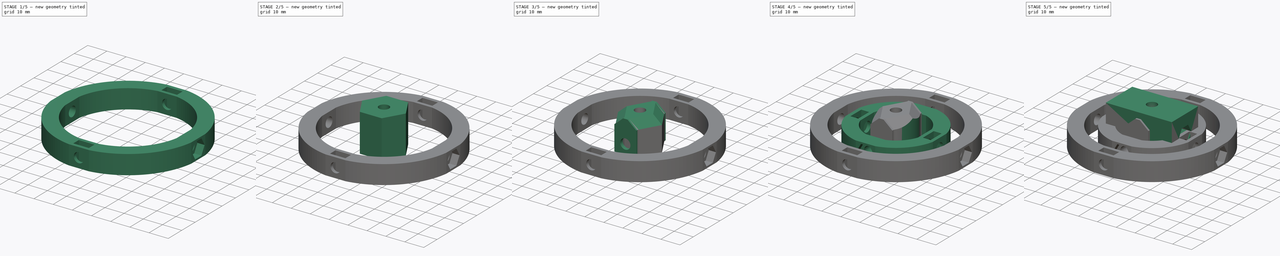
[diagram: build sequence overview — one tinted view per stage of 5, left to right]
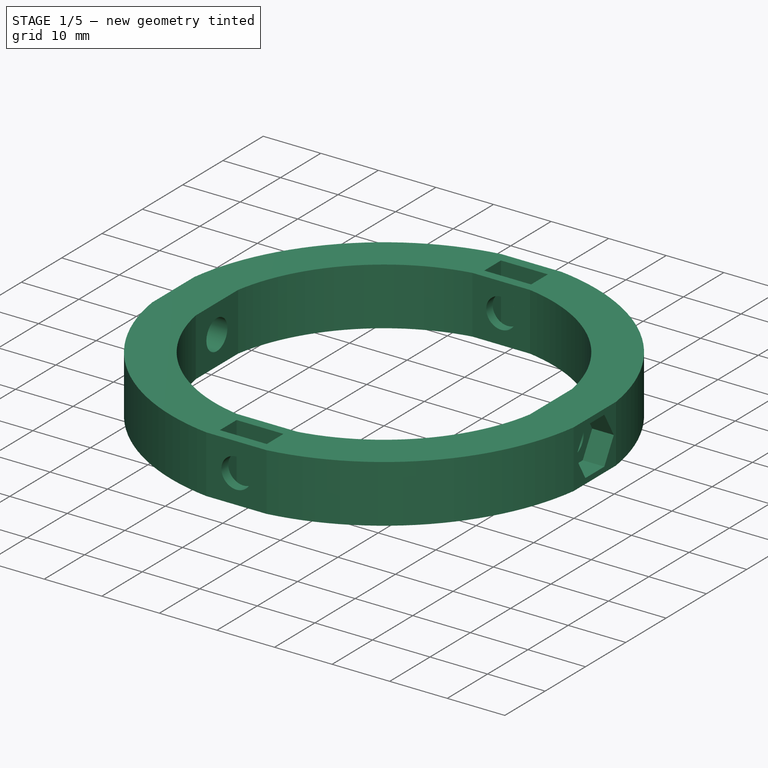
[diagram: stage 1 of 5 — iso view after this stage's code; geometry added in this stage tinted green]
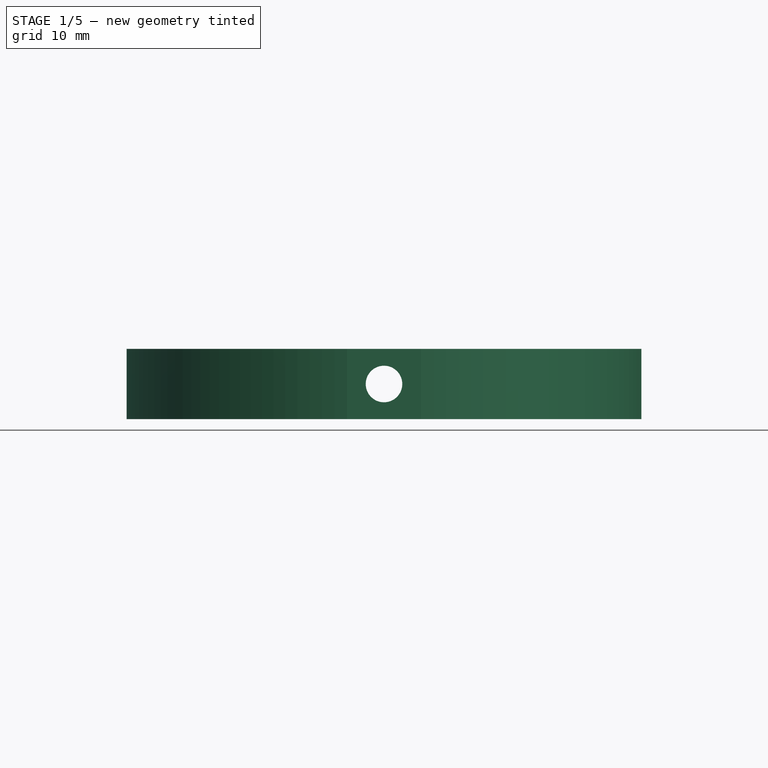
[diagram: stage 1 of 5 — front view after this stage's code; geometry added in this stage tinted green]
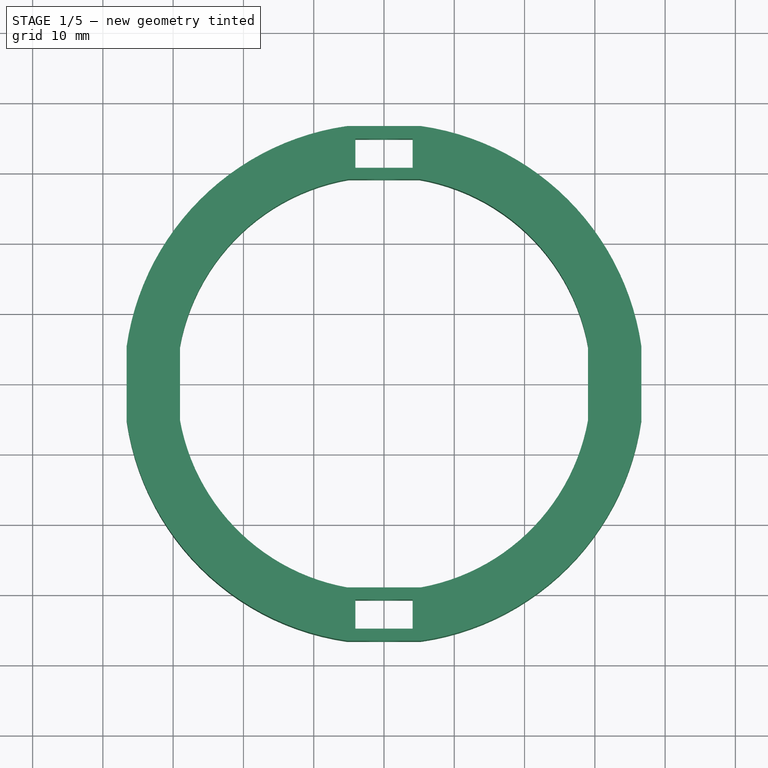
[diagram: stage 1 of 5 — top view after this stage's code; geometry added in this stage tinted green]
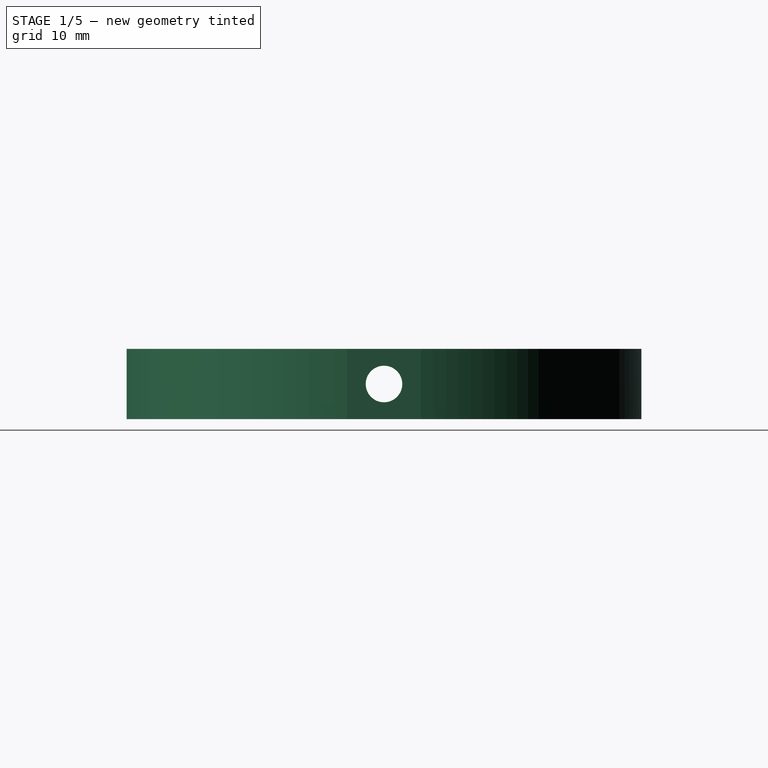
[diagram: stage 1 of 5 — right view after this stage's code; geometry added in this stage tinted green]
FCSTD DOCUMENT  (FreeCAD 0.19R24276 (Git))
Label: joystick
License: All rights reserved
LicenseURL: http://en.wikipedia.org/wiki/All_rights_reserved
objects: Sketcher::SketchObject×25, PartDesign::Pocket×15, PartDesign::Pad×9, PartDesign::Body×5, PartDesign::PolarPattern×5, Spreadsheet::Sheet×2, PartDesign::Fillet×2, PartDesign::Chamfer×1
note: 89 computed .brp shape members not serialized (recipe doc carries the construction recipe); baked Part::Feature solids carry a one-line shape summary decoded from their .brp

FEATURE [Sketcher::SketchObject] Sketch021
  FullyConstrained = false
  MapMode = 5
  Placement = pos=(1.7e-15,-11,0) rot=(1,0,0;1.5708rad)
  Support = -> [Fillet001]
  sketch-geometry (4):
    g0: LineSegment StartX=-2.06517 StartY=12.0844 StartZ=0 EndX=2.20658 EndY=12.0844 EndZ=0
    g1: LineSegment StartX=2.20658 StartY=12.0844 StartZ=0 EndX=2.20658 EndY=19.0982 EndZ=0
    g2: LineSegment StartX=2.20658 StartY=19.0982 StartZ=0 EndX=-2.06517 EndY=19.0982 EndZ=0
    g3: LineSegment StartX=-2.06517 StartY=19.0982 StartZ=0 EndX=-2.06517 EndY=12.0844 EndZ=0
  constraints (8):
    c: Coincident(g0,g1)
    c: Coincident(g1,g2)
    c: Coincident(g2,g3)
    c: Coincident(g3,g0)
    c: Horizontal(g0)
    c: Horizontal(g2)
    c: Vertical(g1)
    c: Vertical(g3)
FEATURE [Sketcher::SketchObject] Sketch022
  ExternalGeometry = -> [Fillet001]
  FullyConstrained = false
  MapMode = 5
  Support = -> [XY_Plane003]
  sketch-geometry (1):
    g0: GeomPoint X=15.0109 Y=0 Z=0
  constraints (1):
    c: PointOnObject(g0,g-1)
FEATURE [PartDesign::Body] Body003
  Group = -> [Sketch009,Pad003,Sketch010,Pocket006,Sketch011,Pocket007,Sketch012,Sketch013,Sketch015,Pocket012,Pad004,PolarPattern004,Sketch016,Sketch017,Sketch020,Pad005,Pocket013,Pocket014,Chamfer,Pad006,Pad007,Fillet,Fillet001,Sketch021,Sketch022]
  Origin = -> Origin003
  Tip = -> Fillet001
FEATURE [Sketcher::SketchObject] Sketch023
  FullyConstrained = false
  MapMode = 5
  Support = -> [XY_Plane004]
  expr: Constraints[2] = Spreadsheet.inner + Spreadsheet.wall * 4 + Spreadsheet.nut * 3
  expr: Constraints[3] = Spreadsheet.inner + Spreadsheet.wall * 2 + Spreadsheet.nut * 3
  sketch-geometry (18):
    g0: Circle CenterX=0 CenterY=0 CenterZ=0 NormalX=0 NormalY=0 NormalZ=1 AngleXU=0 Radius=37
    g1: Circle CenterX=0 CenterY=0 CenterZ=0 NormalX=0 NormalY=0 NormalZ=1 AngleXU=0 Radius=29.5
    g2: LineSegment StartX=-29.0279 StartY=-5.25632 StartZ=0 EndX=-29.0279 EndY=5.25632 EndZ=0
    g3: LineSegment StartX=-5 StartY=29.0732 StartZ=0 EndX=5 EndY=29.0732 EndZ=0
    g4: LineSegment StartX=-36.6247 StartY=5.25632 StartZ=0 EndX=-36.6247 EndY=-5.25632 EndZ=0
    g5: LineSegment StartX=36.6247 StartY=5.25632 StartZ=0 EndX=36.6247 EndY=-5.25632 EndZ=0
    g6: LineSegment StartX=29.0279 StartY=5.25632 StartZ=0 EndX=29.0279 EndY=-5.25632 EndZ=0
    g7: LineSegment StartX=-5.25632 StartY=36.6247 StartZ=0 EndX=5.25632 EndY=36.6247 EndZ=0
    g8: LineSegment StartX=-5.25632 StartY=-36.6247 StartZ=0 EndX=5.25632 EndY=-36.6247 EndZ=0
    g9: LineSegment StartX=-5.25632 StartY=-29.0279 StartZ=0 EndX=5.25632 EndY=-29.0279 EndZ=0
    g10: ArcOfCircle CenterX=0 CenterY=0 CenterZ=0 NormalX=0 NormalY=0 NormalZ=1 AngleXU=0 Radius=37 StartAngle=1.71334 EndAngle=2.99905
    g11: ArcOfCircle CenterX=0 CenterY=0 CenterZ=0 NormalX=0 NormalY=0 NormalZ=1 AngleXU=0 Radius=29.5 StartAngle=1.74111 EndAngle=2.96246
    g12: ArcOfCircle CenterX=0 CenterY=0 CenterZ=0 NormalX=0 NormalY=0 NormalZ=1 AngleXU=0 Radius=37 StartAngle=0.142545 EndAngle=1.42825
    g13: ArcOfCircle CenterX=0 CenterY=0 CenterZ=0 NormalX=0 NormalY=0 NormalZ=1 AngleXU=0 Radius=29.5 StartAngle=0.179137 EndAngle=1.40048
    g14: ArcOfCircle CenterX=0 CenterY=0 CenterZ=0 NormalX=0 NormalY=0 NormalZ=1 AngleXU=0 Radius=37 StartAngle=4.85493 EndAngle=6.14064
    g15: ArcOfCircle CenterX=0 CenterY=0 CenterZ=0 NormalX=0 NormalY=0 NormalZ=1 AngleXU=0 Radius=37 StartAngle=3.28414 EndAngle=4.56984
    g16: ArcOfCircle CenterX=0 CenterY=0 CenterZ=0 NormalX=0 NormalY=0 NormalZ=1 AngleXU=0 Radius=29.5 StartAngle=4.89153 EndAngle=6.10405
    g17: ArcOfCircle CenterX=0 CenterY=0 CenterZ=0 NormalX=0 NormalY=0 NormalZ=1 AngleXU=0 Radius=29.5 StartAngle=3.32073 EndAngle=4.53325
  constraints (49):
    c: Coincident(g0,g-1)
    c: Coincident(g1,g0)
    c: Diameter(g0) = 74
    c: Diameter(g1) = 59
    c: PointOnObject(g2,g1)
    c: Symmetric(g2,g2,g-1)
    c: Symmetric(g3,g3,g-2)
    c: Distance(g3) = 10
    c: PointOnObject(g4,g0)
    c: PointOnObject(g4,g0)
    c: Vertical(g4)
    c: PointOnObject(g5,g0)
    c: Vertical(g5)
    c: PointOnObject(g6,g1)
    c: Vertical(g6)
    c: PointOnObject(g7,g0)
    c: Horizontal(g7)
    c: Horizontal(g9)
    c: Horizontal(g8)
    c: Equal(g7,g4)
    c: Equal(g4,g2)
    c: Equal(g2,g8)
    c: Equal(g8,g5)
    c: Equal(g5,g6)
    c: Equal(g6,g9)
    c: Coincident(g10,g-1)
    c: Coincident(g10,g4)
    c: Coincident(g10,g7)
    c: Coincident(g11,g10)
    c: Coincident(g11,g2)
    c: Coincident(g11,g3)
    c: Coincident(g12,g10)
    c: Coincident(g12,g7)
    c: Coincident(g12,g5)
    c: Coincident(g13,g10)
    c: Coincident(g13,g3)
    c: Coincident(g13,g6)
    c: Coincident(g14,g10)
    c: Coincident(g14,g5)
    c: Coincident(g14,g8)
    c: Coincident(g15,g10)
    c: Coincident(g15,g8)
    c: Coincident(g15,g4)
    c: Coincident(g16,g10)
    c: Coincident(g16,g6)
    c: Coincident(g16,g9)
    c: Coincident(g17,g10)
    c: Coincident(g17,g9)
    c: Coincident(g17,g2)
FEATURE [Spreadsheet::Sheet] Spreadsheet001
  cells = A1=wall width; B1(wall)=7.5; A2=inner circle; B2(inner)=32; A3=outer circle; B3(outer)=60; A4=screw; B4(screw)=8; A5=clearence; B5(clearence)=0.15; A6=screw hole; B6(hole)=5.2; A7=nut height; B7(nut)=4; A8=ring height; B8(ringheight)=10; A9=grip base width; B9(gripwidth)=35; A10=grip height; B10(gripheight)=20
FEATURE [PartDesign::Pad] Pad008
  Direction = (1,1,1)
  Length = 10
  Length2 = 100
  Profile = -> Sketch023
  Refine = true
  Type = 0
  expr: Length = Spreadsheet001.ringheight
FEATURE [Sketcher::SketchObject] Sketch024
  ExternalGeometry = -> [Pad008,Sketch023]
  FullyConstrained = true
  MapMode = 5
  Placement = pos=(36.6247,0,0) rot=(0.57735,0.57735,0.57735;2.0944rad)
  Support = -> [Pad008]
  expr: Constraints[24] = Spreadsheet.screw + Spreadsheet.clearence
  sketch-geometry (9):
    g0: LineSegment StartX=-5.25632 StartY=10 StartZ=0 EndX=5.25632 EndY=0 EndZ=0
    g1: LineSegment StartX=5.25632 StartY=10 StartZ=0 EndX=-5.25632 EndY=0 EndZ=0
    g2: LineSegment StartX=4.7054 StartY=5 StartZ=0 EndX=2.3527 EndY=9.075 EndZ=0
    g3: LineSegment StartX=2.3527 StartY=9.075 StartZ=0 EndX=-2.3527 EndY=9.075 EndZ=0
    g4: LineSegment StartX=-2.3527 StartY=9.075 StartZ=0 EndX=-4.7054 EndY=5 EndZ=0
    g5: LineSegment StartX=-4.7054 StartY=5 StartZ=0 EndX=-2.3527 EndY=0.925 EndZ=0
    g6: LineSegment StartX=-2.3527 StartY=0.925 StartZ=0 EndX=2.3527 EndY=0.925 EndZ=0
    g7: LineSegment StartX=2.3527 StartY=0.925 StartZ=0 EndX=4.7054 EndY=5 EndZ=0
    g8: Circle CenterX=-1.80567e-11 CenterY=5 CenterZ=0 NormalX=0 NormalY=0 NormalZ=1 AngleXU=0 Radius=4.7054
  constraints (21):
    c: Coincident(g0,g-3)
    c: Coincident(g0,g-4)
    c: Coincident(g1,g-3)
    c: Coincident(g1,g-4)
    c: Coincident(g2,g3)
    c: Coincident(g3,g4)
    c: Coincident(g4,g5)
    c: Coincident(g5,g6)
    c: Coincident(g6,g7)
    c: Coincident(g7,g2)
    c: Equal(g2, g3-g7) x5
    c: PointOnObject(g2,g8)
    c: PointOnObject(g3,g8)
    c: PointOnObject(g4,g8)
    c: PointOnObject(g5,g8)
    c: PointOnObject(g6,g8)
    c: PointOnObject(g7,g8)
    c: PointOnObject(g8,g1)
    c: PointOnObject(g8,g0)
    c: Horizontal(g3)
    c: Distance(g6,g2) = 8.15
FEATURE [Sketcher::SketchObject] Sketch025
  ExternalGeometry = -> [Sketch023,Pad008]
  FullyConstrained = true
  MapMode = 5
  Placement = pos=(0,-36.6247,0) rot=(1,0,0;1.5708rad)
  Support = -> [Pad008]
  expr: Constraints[5] = Spreadsheet.hole
  sketch-geometry (3):
    g0: LineSegment StartX=-5.25632 StartY=10 StartZ=0 EndX=5.25632 EndY=0 EndZ=0
    g1: LineSegment StartX=5.25632 StartY=10 StartZ=0 EndX=-5.25632 EndY=0 EndZ=0
    g2: Circle CenterX=1.34898e-11 CenterY=5 CenterZ=0 NormalX=0 NormalY=0 NormalZ=1 AngleXU=0 Radius=2.6
  constraints (7):
    c: Coincident(g0,g-4)
    c: Coincident(g0,g-3)
    c: Coincident(g1,g-4)
    c: Coincident(g1,g-3)
    c: PointOnObject(g2,g1)
    c: Diameter(g2) = 5.2
    c: PointOnObject(g2,g0)
FEATURE [PartDesign::Pocket] Pocket015
  BaseFeature = -> Pad008
  Length = 0
  Length2 = 100
  Profile = -> Sketch025
  Refine = true
  Type = 3
  UpToFace = -> Pad008 [Face8]
FEATURE [PartDesign::Pocket] Pocket016
  BaseFeature = -> Pocket015
  Length = 3.75
  Length2 = 100
  Profile = -> Sketch024
  Refine = true
  Type = 0
  expr: Length = Spreadsheet.wall / 2
FEATURE [PartDesign::PolarPattern] PolarPattern005
  Angle = 360
  Axis = -> Z_Axis004
  BaseFeature = -> Pocket016
  Occurrences = 2
  Originals = -> [Pocket016]
  Refine = true
FEATURE [PartDesign::PolarPattern] PolarPattern006
  Angle = 360
  Axis = -> Z_Axis004
  BaseFeature = -> PolarPattern005
  Occurrences = 4
  Originals = -> [Pocket015]
  Refine = true
FEATURE [Sketcher::SketchObject] Sketch026
  ExternalGeometry = -> [PolarPattern006]
  FullyConstrained = true
  MapMode = 5
  Placement = pos=(0,0,10) rot=(0,0,1;0rad)
  Support = -> [PolarPattern006]
  expr: Constraints[17] = Spreadsheet.screw + Spreadsheet.clearence
  expr: Constraints[16] = Spreadsheet.nut + Spreadsheet.clearence
  sketch-geometry (14):
    g0: LineSegment StartX=-5.25632 StartY=36.6247 StartZ=0 EndX=5 EndY=29.0732 EndZ=0
    g1: LineSegment StartX=5.25632 StartY=36.6247 StartZ=0 EndX=-5 EndY=29.0732 EndZ=0
    g2: LineSegment StartX=-5.25632 StartY=-29.0279 StartZ=0 EndX=5.25632 EndY=-36.6247 EndZ=0
    g3: LineSegment StartX=-5.25632 StartY=-36.6247 StartZ=0 EndX=5.25632 EndY=-29.0279 EndZ=0
    g4: LineSegment StartX=-4.075 StartY=-30.7513 StartZ=0 EndX=4.075 EndY=-30.7513 EndZ=0
    g5: LineSegment StartX=4.075 StartY=-30.7513 StartZ=0 EndX=4.075 EndY=-34.9013 EndZ=0
    g6: LineSegment StartX=4.075 StartY=-34.9013 StartZ=0 EndX=-4.075 EndY=-34.9013 EndZ=0
    g7: LineSegment StartX=-4.075 StartY=-34.9013 StartZ=0 EndX=-4.075 EndY=-30.7513 EndZ=0
    g8: GeomPoint X=6.702e-12 Y=-32.8263 Z=0
    g9: GeomPoint X=-2.7064e-12 Y=32.7546 Z=0
    g10: LineSegment StartX=-4.075 StartY=34.8296 StartZ=0 EndX=4.075 EndY=34.8296 EndZ=0
    g11: LineSegment StartX=4.075 StartY=34.8296 StartZ=0 EndX=4.075 EndY=30.6796 EndZ=0
    g12: LineSegment StartX=4.075 StartY=30.6796 StartZ=0 EndX=-4.075 EndY=30.6796 EndZ=0
    g13: LineSegment StartX=-4.075 StartY=30.6796 StartZ=0 EndX=-4.075 EndY=34.8296 EndZ=0
  constraints (34):
    c: Coincident(g0,g-3)
    c: Coincident(g0,g-4)
    c: Coincident(g1,g-3)
    c: Coincident(g1,g-4)
    c: Coincident(g2,g-5)
    c: Coincident(g2,g-7)
    c: Coincident(g3,g-7)
    c: Coincident(g3,g-5)
    c: Coincident(g4,g5)
    c: Coincident(g5,g6)
    c: Coincident(g6,g7)
    c: Coincident(g7,g4)
    c: Horizontal(g4)
    c: Horizontal(g6)
    c: Vertical(g5)
    c: Vertical(g7)
    c: DistanceY(g5,g5) = 4.15
    c: DistanceX(g6,g6) = 8.15
    c: PointOnObject(g8,g3)
    c: PointOnObject(g8,g2)
    c: Symmetric(g5,g4,g8)
    c: PointOnObject(g9,g1)
    c: PointOnObject(g9,g0)
    c: Coincident(g10,g11)
    c: Coincident(g11,g12)
    c: Coincident(g12,g13)
    c: Coincident(g13,g10)
    c: Horizontal(g10)
    c: Horizontal(g12)
    c: Vertical(g11)
    c: Vertical(g13)
    c: Equal(g5,g11)
    c: Equal(g12,g4)
    c: Symmetric(g11,g10,g9)
FEATURE [PartDesign::Pocket] Pocket017
  BaseFeature = -> PolarPattern006
  Length = 10
  Length2 = 100
  Profile = -> Sketch026
  Refine = true
  Type = 0
  expr: Length = Spreadsheet.ringheight
FEATURE [PartDesign::Body] Body004  label="inner ring001"
  Group = -> [Sketch023,Pad008,Sketch024,Sketch025,Pocket015,Pocket016,PolarPattern005,PolarPattern006,Sketch026,Pocket017]
  Origin = -> Origin004
  Tip = -> Pocket017
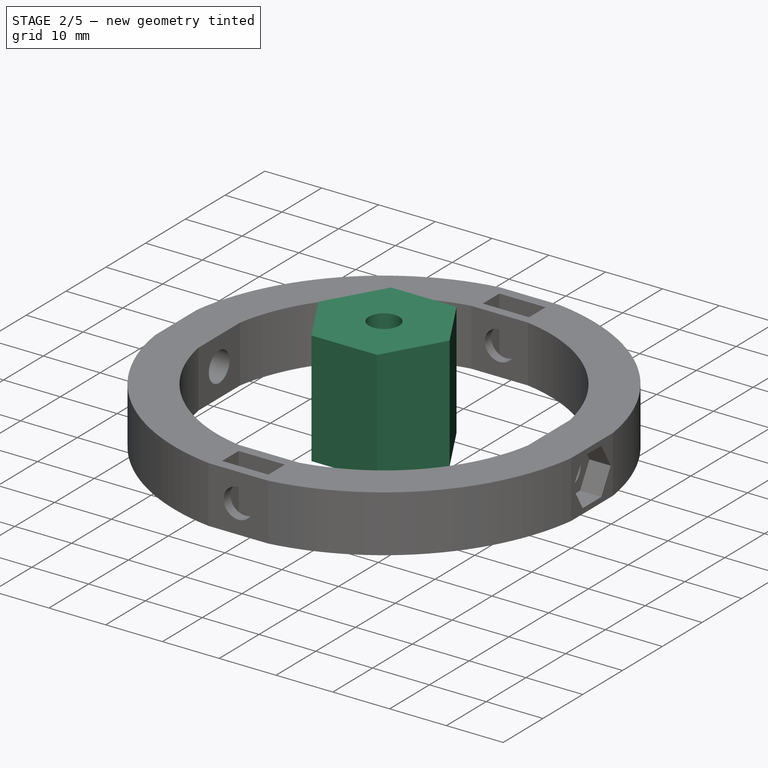
[diagram: stage 2 of 5 — iso view after this stage's code; geometry added in this stage tinted green]
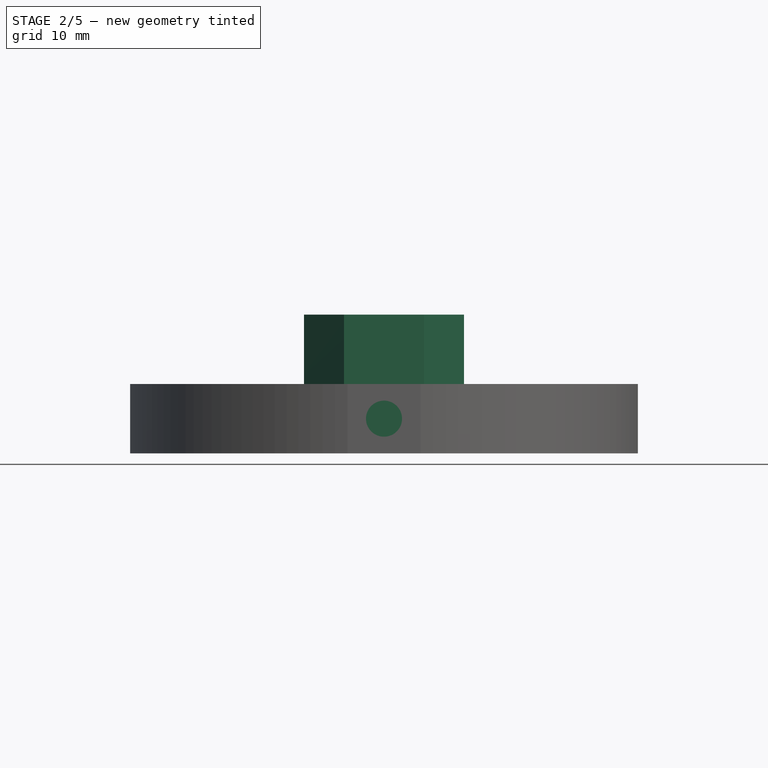
[diagram: stage 2 of 5 — front view after this stage's code; geometry added in this stage tinted green]
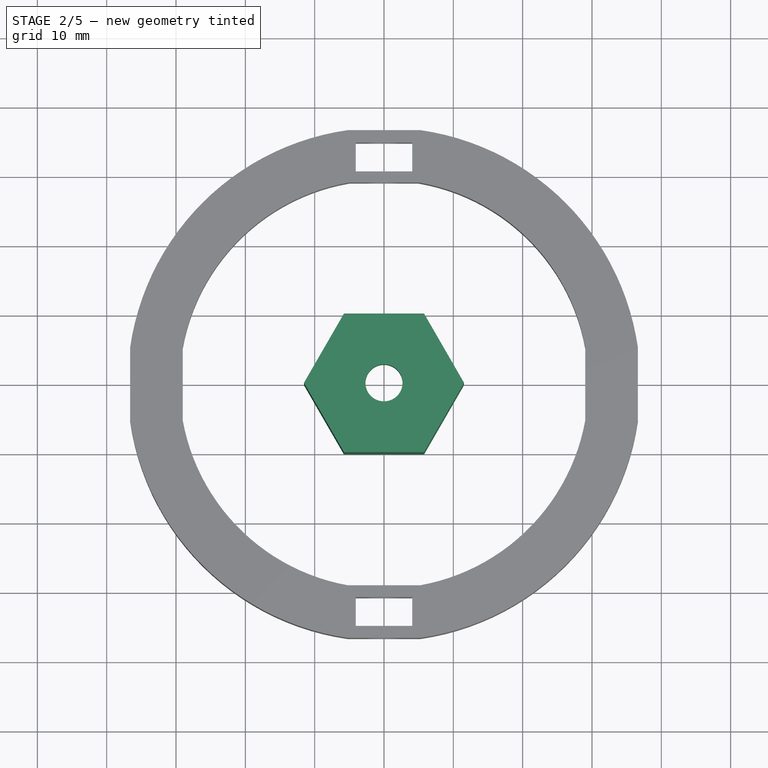
[diagram: stage 2 of 5 — top view after this stage's code; geometry added in this stage tinted green]
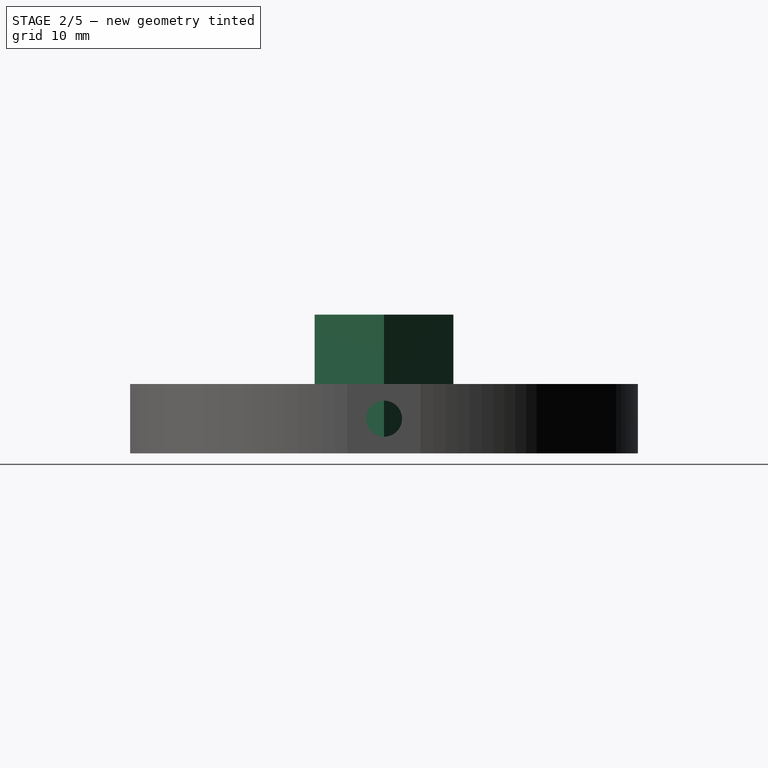
[diagram: stage 2 of 5 — right view after this stage's code; geometry added in this stage tinted green]
FEATURE [PartDesign::Body] Body001  label="grip base"
  Group = -> [Sketch004,Pad001,Sketch005,Pocket003,Sketch007,Pocket004,Sketch008,Pocket005]
  Origin = -> Origin001
  Placement = pos=(0,0,0) rot=(0,0,1;1.5708rad)
  Tip = -> Pocket005
FEATURE [Sketcher::SketchObject] Sketch009
  FullyConstrained = true
  MapMode = 5
  Support = -> [XY_Plane003]
  expr: Constraints[21] = Spreadsheet.gripheight
  expr: Constraints[18] = Spreadsheet.hole + Spreadsheet.clearence
  sketch-geometry (8):
    g0: LineSegment StartX=5.7735 StartY=10 StartZ=0 EndX=-5.7735 EndY=10 EndZ=0
    g1: LineSegment StartX=-5.7735 StartY=10 StartZ=0 EndX=-11.547 EndY=-1.8e-15 EndZ=0
    g2: LineSegment StartX=-11.547 StartY=-1.8e-15 StartZ=0 EndX=-5.7735 EndY=-10 EndZ=0
    g3: LineSegment StartX=-5.7735 StartY=-10 StartZ=0 EndX=5.7735 EndY=-10 EndZ=0
    g4: LineSegment StartX=5.7735 StartY=-10 StartZ=0 EndX=11.547 EndY=0 EndZ=0
    g5: LineSegment StartX=11.547 StartY=0 StartZ=0 EndX=5.7735 EndY=10 EndZ=0
    g6: Circle CenterX=0 CenterY=0 CenterZ=0 NormalX=0 NormalY=0 NormalZ=1 AngleXU=0 Radius=11.547
    g7: Circle CenterX=0 CenterY=0 CenterZ=0 NormalX=0 NormalY=0 NormalZ=1 AngleXU=0 Radius=2.675
  constraints (18):
    c: Coincident(g0,g1)
    c: Coincident(g1,g2)
    c: Coincident(g2,g3)
    c: Coincident(g3,g4)
    c: Coincident(g4,g5)
    c: Coincident(g5,g0)
    c: Equal(g0, g1-g5) x5
    c: PointOnObject(g0,g6)
    c: PointOnObject(g1,g6)
    c: PointOnObject(g2,g6)
    c: PointOnObject(g3,g6)
    c: PointOnObject(g4,g6)
    c: Coincident(g6,g-1)
    c: Coincident(g7,g-1)
    c: Diameter(g7) = 5.35
    c: PointOnObject(g0,g6)
    c: PointOnObject(g4,g-1)
    c: Distance(g3,g0) = 20
FEATURE [PartDesign::Pad] Pad003
  Direction = (1,1,1)
  Length = 20
  Length2 = 100
  Profile = -> Sketch009
  Refine = true
  Type = 0
  expr: Length = Spreadsheet.gripheight
FEATURE [PartDesign::Body] Body  label="inner ring"
  Group = -> [Sketch,Pad,Sketch001,Pocket,Sketch002,Pocket001,Sketch003,Pocket002,PolarPattern,PolarPattern003,Sketch014,Pocket011]
  Origin = -> Origin
  Tip = -> Pocket011
FEATURE [PartDesign::Pocket] Pocket006
  BaseFeature = -> Pad003
  Length = 13.3333
  Length2 = 100
  Profile = -> Sketch010
  Refine = true
  Type = 0
  expr: Length = Spreadsheet.gripheight * 2 / 3
FEATURE [Sketcher::SketchObject] Sketch011
  ExternalGeometry = -> [Pocket006]
  FullyConstrained = true
  MapMode = 5
  Placement = pos=(1.533e-12,4.075,0) rot=(1,0,0;1.5708rad)
  Support = -> [Pocket006]
  expr: Constraints[19] = Spreadsheet.screw + Spreadsheet.clearence
  sketch-geometry (7):
    g0: LineSegment StartX=4.7054 StartY=5.075 StartZ=0 EndX=2.3527 EndY=9.15 EndZ=0
    g1: LineSegment StartX=2.3527 StartY=9.15 StartZ=0 EndX=-2.3527 EndY=9.15 EndZ=0
    g2: LineSegment StartX=-2.3527 StartY=9.15 StartZ=0 EndX=-4.7054 EndY=5.075 EndZ=0
    g3: LineSegment StartX=-4.7054 StartY=5.075 StartZ=0 EndX=-2.3527 EndY=1 EndZ=0
    g4: LineSegment StartX=-2.3527 StartY=1 StartZ=0 EndX=2.3527 EndY=1 EndZ=0
    g5: LineSegment StartX=2.3527 StartY=1 StartZ=0 EndX=4.7054 EndY=5.075 EndZ=0
    g6: Circle CenterX=0 CenterY=5.075 CenterZ=0 NormalX=0 NormalY=0 NormalZ=1 AngleXU=0 Radius=4.7054
  constraints (17):
    c: Coincident(g0,g1)
    c: Coincident(g1,g2)
    c: Coincident(g2,g3)
    c: Coincident(g3,g4)
    c: Coincident(g4,g5)
    c: Coincident(g5,g0)
    c: Equal(g0, g1-g5) x5
    c: PointOnObject(g0,g6)
    c: PointOnObject(g1,g6)
    c: PointOnObject(g2,g6)
    c: PointOnObject(g3,g6)
    c: PointOnObject(g4,g6)
    c: PointOnObject(g5,g6)
    c: PointOnObject(g6,g-2)
    c: Horizontal(g4)
    c: Distance(g0,g4) = 8.15
    c: DistanceY(g-5,g4) = 1
FEATURE [Sketcher::SketchObject] Sketch013
  ExternalGeometry = -> [Sketch011]
  FullyConstrained = true
  MapMode = 5
  Placement = pos=(-2e-15,10,0) rot=(0,0.707107,0.707107;3.14159rad)
  expr: Constraints[6] = Spreadsheet.hole
  sketch-geometry (3):
    g0: LineSegment StartX=-2.3527 StartY=9.15 StartZ=0 EndX=2.3527 EndY=1 EndZ=0
    g1: LineSegment StartX=2.3527 StartY=9.15 StartZ=0 EndX=-2.3527 EndY=1 EndZ=0
    g2: Circle CenterX=-1.533e-12 CenterY=5.075 CenterZ=0 NormalX=0 NormalY=0 NormalZ=1 AngleXU=0 Radius=2.6
  constraints (7):
    c: Coincident(g0,g-3)
    c: Coincident(g0,g-4)
    c: Coincident(g1,g-3)
    c: Coincident(g1,g-4)
    c: PointOnObject(g2,g1)
    c: PointOnObject(g2,g0)
    c: Diameter(g2) = 5.2
FEATURE [PartDesign::Pocket] Pocket007
  BaseFeature = -> Pocket006
  Length = 5.03
  Length2 = 4.15
  Profile = -> Sketch011
  Refine = true
  Type = 4
  expr: Length2 = Spreadsheet.nut + Spreadsheet.clearence
  expr: Length = 5.025
FEATURE [Sketcher::SketchObject] Sketch012
  ExternalGeometry = -> [Pocket007]
  FullyConstrained = false
  MapMode = 5
  Placement = pos=(0,0,0) rot=(1,0,0;3.14159rad)
  Support = -> [Pocket007]
  expr: Constraints[21] = Spreadsheet.nut + Spreadsheet.clearence
  sketch-geometry (24):
    g0: LineSegment StartX=-4.7054 StartY=-4.9625 StartZ=0 EndX=4.7054 EndY=-4.9625 EndZ=0
    g1: LineSegment StartX=4.7054 StartY=-4.9625 StartZ=0 EndX=4.7054 EndY=-9.1125 EndZ=0
    g2: LineSegment StartX=4.7054 StartY=-9.1125 StartZ=0 EndX=-4.7054 EndY=-9.1125 EndZ=0
    g3: LineSegment StartX=-4.7054 StartY=-9.1125 StartZ=0 EndX=-4.7054 EndY=-4.9625 EndZ=0
    g4: LineSegment StartX=-4.7054 StartY=9.1125 StartZ=0 EndX=4.7054 EndY=9.1125 EndZ=0
    g5: LineSegment StartX=4.7054 StartY=9.1125 StartZ=0 EndX=4.7054 EndY=4.9625 EndZ=0
    g6: LineSegment StartX=4.7054 StartY=4.9625 StartZ=0 EndX=-4.7054 EndY=4.9625 EndZ=0
    g7: LineSegment StartX=-4.7054 StartY=4.9625 StartZ=0 EndX=-4.7054 EndY=9.1125 EndZ=0
    g8: LineSegment StartX=-4.7054 StartY=-2.185e-13 StartZ=0 EndX=4.7054 EndY=0 EndZ=0
    g9: LineSegment StartX=4.7054 StartY=-10 StartZ=0 EndX=4.7054 EndY=10 EndZ=0
    g10: LineSegment StartX=-4.7054 StartY=-4.9625 StartZ=0 EndX=4.7054 EndY=-9.1125 EndZ=0
    g11: LineSegment StartX=-4.7054 StartY=9.1125 StartZ=0 EndX=4.7054 EndY=4.9625 EndZ=0
    g12: GeomPoint X=0 Y=7.0375 Z=0
    g13: GeomPoint X=0 Y=-7.0375 Z=0
    g14: LineSegment StartX=2.3527 StartY=-4.075 StartZ=0 EndX=2.3527 EndY=-4.9625 EndZ=0
    g15: LineSegment StartX=2.65318 StartY=-9.1125 StartZ=0 EndX=2.65318 EndY=-10 EndZ=0
    g16: LineSegment StartX=-5.7735 StartY=10 StartZ=0 EndX=5.7735 EndY=10 EndZ=0
    g17: LineSegment StartX=5.7735 StartY=10 StartZ=0 EndX=5.7735 EndY=4.075 EndZ=0
    g18: LineSegment StartX=5.7735 StartY=4.075 StartZ=0 EndX=-5.7735 EndY=4.075 EndZ=0
    g19: LineSegment StartX=-5.7735 StartY=4.075 StartZ=0 EndX=-5.7735 EndY=10 EndZ=0
    g20: LineSegment StartX=-5.7735 StartY=-4.075 StartZ=0 EndX=5.7735 EndY=-4.075 EndZ=0
    g21: LineSegment StartX=5.7735 StartY=-4.075 StartZ=0 EndX=5.7735 EndY=-10 EndZ=0
    g22: LineSegment StartX=5.7735 StartY=-10 StartZ=0 EndX=-5.7735 EndY=-10 EndZ=0
    g23: LineSegment StartX=-5.7735 StartY=-10 StartZ=0 EndX=-5.7735 EndY=-4.075 EndZ=0
  constraints (62):
    c: Coincident(g0,g1)
    c: Coincident(g1,g2)
    c: Coincident(g2,g3)
    c: Coincident(g3,g0)
    c: Horizontal(g0)
    c: Horizontal(g2)
    c: Vertical(g1)
    c: Vertical(g3)
    c: Coincident(g4,g5)
    c: Coincident(g5,g6)
    c: Coincident(g6,g7)
    c: Coincident(g7,g4)
    c: Horizontal(g4)
    c: Horizontal(g6)
    c: Vertical(g5)
    c: Vertical(g7)
    c: Equal(g6,g0)
    c: Equal(g5,g1)
    c: Coincident(g8,g-8)
    c: Coincident(g8,g-7)
    c: Equal(g8,g0)
    c: Distance(g1) = 4.15
    c: PointOnObject(g9,g-5)
    c: PointOnObject(g9,g-4)
    c: Vertical(g9)
    c: PointOnObject(g8,g9)
    c: PointOnObject(g0,g9)
    c: PointOnObject(g4,g9)
    c: Coincident(g10,g0)
    c: Coincident(g10,g1)
    c: Coincident(g11,g4)
    c: Coincident(g11,g5)
    c: PointOnObject(g12,g11)
    c: PointOnObject(g13,g10)
    c: PointOnObject(g13,g-2)
    c: Coincident(g14,g-6)
    c: PointOnObject(g14,g0)
    c: Vertical(g14)
    c: PointOnObject(g15,g2)
    c: PointOnObject(g15,g-5)
    c: Vertical(g15)
    c: Equal(g15,g14)
    c: Symmetric(g13,g12,g-1)
    c: Coincident(g16,g17)
    c: Coincident(g17,g18)
    c: Coincident(g18,g19)
    c: Coincident(g19,g16)
    c: Vertical(g17)
    c: Vertical(g19)
    c: Coincident(g16,g-4)
    c: Coincident(g20,g21)
    c: Coincident(g21,g22)
    c: Coincident(g22,g23)
    c: Coincident(g23,g20)
    c: Horizontal(g20)
    c: Vertical(g21)
    c: Vertical(g23)
    c: Coincident(g21,g-5)
    c: PointOnObject(g-6,g20)
    c: Tangent(g-3,g18) = -1.5708
    c: Coincident(g22,g-5)
    c: Coincident(g16,g-4)
FEATURE [Sketcher::SketchObject] Sketch015
  ExternalGeometry = -> [Sketch012]
  FullyConstrained = true
  MapMode = 5
  Placement = pos=(0,0,0) rot=(1,0,0;3.14159rad)
  Support = -> [Pocket007]
  sketch-geometry (8):
    g0: LineSegment StartX=4.7054 StartY=9.1125 StartZ=0 EndX=-4.7054 EndY=9.1125 EndZ=0
    g1: LineSegment StartX=-4.7054 StartY=9.1125 StartZ=0 EndX=-4.7054 EndY=4.9625 EndZ=0
    g2: LineSegment StartX=-4.7054 StartY=4.9625 StartZ=0 EndX=4.7054 EndY=4.9625 EndZ=0
    g3: LineSegment StartX=4.7054 StartY=4.9625 StartZ=0 EndX=4.7054 EndY=9.1125 EndZ=0
    g4: LineSegment StartX=-4.7054 StartY=-4.9625 StartZ=0 EndX=4.7054 EndY=-4.9625 EndZ=0
    g5: LineSegment StartX=4.7054 StartY=-4.9625 StartZ=0 EndX=4.7054 EndY=-9.1125 EndZ=0
    g6: LineSegment StartX=4.7054 StartY=-9.1125 StartZ=0 EndX=-4.7054 EndY=-9.1125 EndZ=0
    g7: LineSegment StartX=-4.7054 StartY=-9.1125 StartZ=0 EndX=-4.7054 EndY=-4.9625 EndZ=0
  constraints (20):
    c: Coincident(g0,g1)
    c: Coincident(g1,g2)
    c: Coincident(g2,g3)
    c: Coincident(g3,g0)
    c: Horizontal(g0)
    c: Horizontal(g2)
    c: Vertical(g1)
    c: Vertical(g3)
    c: Coincident(g0,g-3)
    c: Coincident(g1,g-4)
    c: Coincident(g4,g5)
    c: Coincident(g5,g6)
    c: Coincident(g6,g7)
    c: Coincident(g7,g4)
    c: Horizontal(g4)
    c: Horizontal(g6)
    c: Vertical(g5)
    c: Vertical(g7)
    c: Coincident(g4,g-5)
    c: Coincident(g5,g-6)
FEATURE [PartDesign::Pocket] Pocket012
  BaseFeature = -> Pocket007
  Length = 5
  Length2 = 100
  Profile = -> Sketch015
  Refine = true
  Type = 0
FEATURE [PartDesign::Pad] Pad004
  BaseFeature = -> Pocket012
  Direction = (1,1,1)
  Length = 13.3333
  Length2 = 100
  Profile = -> Sketch012
  Refine = true
  Reversed = true
  Type = 0
  expr: Length = Spreadsheet.gripheight * 2 / 3
FEATURE [PartDesign::PolarPattern] PolarPattern004
  Angle = 360
  Axis = -> Z_Axis003
  BaseFeature = -> Pad004
  Occurrences = 2
  Originals = -> [Pocket007]
  Refine = true
FEATURE [Sketcher::SketchObject] Sketch016
  ExternalGeometry = -> [PolarPattern004]
  FullyConstrained = true
  MapMode = 5
  Placement = pos=(1.5e-15,-10,0) rot=(1,0,0;1.5708rad)
  Support = -> [PolarPattern004]
  expr: Constraints[6] = Spreadsheet.hole + Spreadsheet.clearence
  sketch-geometry (3):
    g0: LineSegment StartX=-4.7054 StartY=5.075 StartZ=0 EndX=4.7054 EndY=5.075 EndZ=0
    g1: LineSegment StartX=2.3527 StartY=9.15 StartZ=0 EndX=-2.3527 EndY=1 EndZ=0
    g2: Circle CenterX=0 CenterY=5.075 CenterZ=0 NormalX=0 NormalY=0 NormalZ=1 AngleXU=0 Radius=2.675
  constraints (7):
    c: Coincident(g0,g-4)
    c: Coincident(g0,g-3)
    c: Coincident(g1,g-3)
    c: Coincident(g1,g-4)
    c: PointOnObject(g2,g0)
    c: PointOnObject(g2,g-2)
    c: Diameter(g2) = 5.35
FEATURE [Sketcher::SketchObject] Sketch017
  ExternalGeometry = -> [PolarPattern004]
  FullyConstrained = true
  MapMode = 5
  Placement = pos=(0,4.075,0) rot=(1,0,0;1.5708rad)
  Support = -> [PolarPattern004]
  sketch-geometry (7):
    g0: LineSegment StartX=4.74871 StartY=13.15 StartZ=0 EndX=0.0433013 EndY=13.2 EndZ=0
    g1: LineSegment StartX=0.0433013 StartY=13.2 StartZ=0 EndX=-2.3527 EndY=9.15 EndZ=0
    g2: LineSegment StartX=-2.3527 StartY=9.15 StartZ=0 EndX=-0.0433013 EndY=5.05 EndZ=0
    g3: LineSegment StartX=-0.0433013 StartY=5.05 StartZ=0 EndX=4.6621 EndY=5 EndZ=0
    g4: LineSegment StartX=4.6621 StartY=5 StartZ=0 EndX=7.05811 EndY=9.05 EndZ=0
    g5: LineSegment StartX=7.05811 StartY=9.05 StartZ=0 EndX=4.74871 EndY=13.15 EndZ=0
    g6: Circle CenterX=2.3527 CenterY=9.1 CenterZ=0 NormalX=0 NormalY=0 NormalZ=1 AngleXU=0 Radius=4.70567
  constraints (15):
    c: Coincident(g0,g1)
    c: Coincident(g1,g2)
    c: Coincident(g2,g3)
    c: Coincident(g3,g4)
    c: Coincident(g4,g5)
    c: Coincident(g5,g0)
    c: Equal(g0, g1-g5) x5
    c: PointOnObject(g0,g6)
    c: PointOnObject(g1,g6)
    c: PointOnObject(g2,g6)
    c: PointOnObject(g3,g6)
    c: PointOnObject(g4,g6)
    c: PointOnObject(g5,g6)
    c: Coincident(g-3,g1)
    c: Coincident(g3,g-4)
FEATURE [Sketcher::SketchObject] Sketch020
  ExternalGeometry = -> [PolarPattern004]
  FullyConstrained = true
  MapMode = 5
  Placement = pos=(0,0,0) rot=(1,0,0;3.14159rad)
  Support = -> [PolarPattern004]
  sketch-geometry (22):
    g0: LineSegment StartX=-11.547 StartY=1.8e-15 StartZ=0 EndX=-5.7735 EndY=-10 EndZ=0
    g1: LineSegment StartX=-5.7735 StartY=-10 StartZ=0 EndX=5.7735 EndY=-10 EndZ=0
    g2: LineSegment StartX=5.7735 StartY=-10 StartZ=0 EndX=11.547 EndY=3.908e-13 EndZ=0
    g3: LineSegment StartX=11.547 StartY=3.908e-13 StartZ=0 EndX=5.7735 EndY=10 EndZ=0
    g4: LineSegment StartX=5.7735 StartY=10 StartZ=0 EndX=-5.7735 EndY=10 EndZ=0
    g5: LineSegment StartX=-5.7735 StartY=10 StartZ=0 EndX=-11.547 EndY=1.8e-15 EndZ=0
    g6: Circle CenterX=0 CenterY=0 CenterZ=0 NormalX=0 NormalY=0 NormalZ=1 AngleXU=0 Radius=11.547
    g7: LineSegment StartX=-4.7054 StartY=-4.9625 StartZ=0 EndX=4.7054 EndY=-4.9625 EndZ=0
    g8: LineSegment StartX=4.7054 StartY=-4.9625 StartZ=0 EndX=4.7054 EndY=-9.1125 EndZ=0
    g9: LineSegment StartX=4.7054 StartY=-9.1125 StartZ=0 EndX=-4.7054 EndY=-9.1125 EndZ=0
    g10: LineSegment StartX=-4.7054 StartY=-9.1125 StartZ=0 EndX=-4.7054 EndY=-4.9625 EndZ=0
    g11: LineSegment StartX=4.7054 StartY=9.1125 StartZ=0 EndX=-4.7054 EndY=9.1125 EndZ=0
    g12: LineSegment StartX=-4.7054 StartY=9.1125 StartZ=0 EndX=-4.7054 EndY=4.9625 EndZ=0
    g13: LineSegment StartX=-4.7054 StartY=4.9625 StartZ=0 EndX=4.7054 EndY=4.9625 EndZ=0
    g14: LineSegment StartX=4.7054 StartY=4.9625 StartZ=0 EndX=4.7054 EndY=9.1125 EndZ=0
    g15: LineSegment StartX=4.7054 StartY=0 StartZ=0 EndX=2.3527 EndY=4.075 EndZ=0
    g16: LineSegment StartX=2.3527 StartY=4.075 StartZ=0 EndX=-2.3527 EndY=4.075 EndZ=0
    g17: LineSegment StartX=-2.3527 StartY=4.075 StartZ=0 EndX=-4.7054 EndY=5.169e-13 EndZ=0
    g18: LineSegment StartX=-4.7054 StartY=5.169e-13 StartZ=0 EndX=-2.3527 EndY=-4.075 EndZ=0
    g19: LineSegment StartX=-2.3527 StartY=-4.075 StartZ=0 EndX=2.3527 EndY=-4.075 EndZ=0
    g20: LineSegment StartX=2.3527 StartY=-4.075 StartZ=0 EndX=4.7054 EndY=0 EndZ=0
    g21: Circle CenterX=0 CenterY=0 CenterZ=0 NormalX=0 NormalY=0 NormalZ=1 AngleXU=0 Radius=4.7054
  constraints (50):
    c: Coincident(g0,g1)
    c: Coincident(g1,g2)
    c: Coincident(g2,g3)
    c: Coincident(g3,g4)
    c: Coincident(g4,g5)
    c: Coincident(g5,g0)
    c: Equal(g0, g1-g5) x5
    c: PointOnObject(g0,g6)
    c: PointOnObject(g1,g6)
    c: PointOnObject(g2,g6)
    c: PointOnObject(g3,g6)
    c: PointOnObject(g4,g6)
    c: PointOnObject(g5,g6)
    c: Coincident(g6,g-1)
    c: Coincident(g0,g-8)
    c: Coincident(g7,g8)
    c: Coincident(g8,g9)
    c: Coincident(g9,g10)
    c: Coincident(g10,g7)
    c: Horizontal(g7)
    c: Horizontal(g9)
    c: Vertical(g8)
    c: Vertical(g10)
    c: Coincident(g7,g-5)
    c: Coincident(g8,g-6)
    c: Coincident(g11,g12)
    c: Coincident(g12,g13)
    c: Coincident(g13,g14)
    c: Coincident(g14,g11)
    c: Horizontal(g11)
    c: Horizontal(g13)
    c: Vertical(g12)
    c: Vertical(g14)
    c: Coincident(g11,g-9)
    c: Coincident(g12,g-10)
    c: Coincident(g15,g16)
    c: Coincident(g16,g17)
    c: Coincident(g17,g18)
    c: Coincident(g18,g19)
    c: Coincident(g19,g20)
    c: Coincident(g20,g15)
    c: Equal(g15, g16-g20) x5
    c: PointOnObject(g15,g21)
    c: PointOnObject(g16,g21)
    c: PointOnObject(g17,g21)
    c: PointOnObject(g18,g21)
    c: PointOnObject(g19,g21)
    c: PointOnObject(g20,g21)
    c: Coincident(g21,g-1)
    c: Coincident(g-11,g15)
FEATURE [PartDesign::Pad] Pad005
  BaseFeature = -> PolarPattern004
  Direction = (1,1,1)
  Length = 10
  Length2 = 100
  Profile = -> Sketch020
  Refine = true
  Reversed = true
  Type = 0
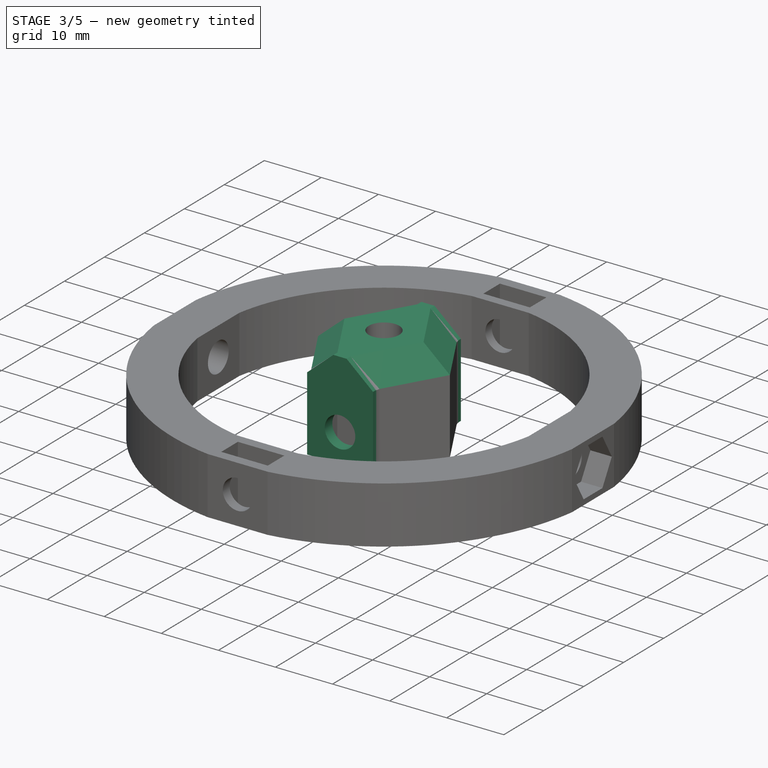
[diagram: stage 3 of 5 — iso view after this stage's code; geometry added in this stage tinted green]
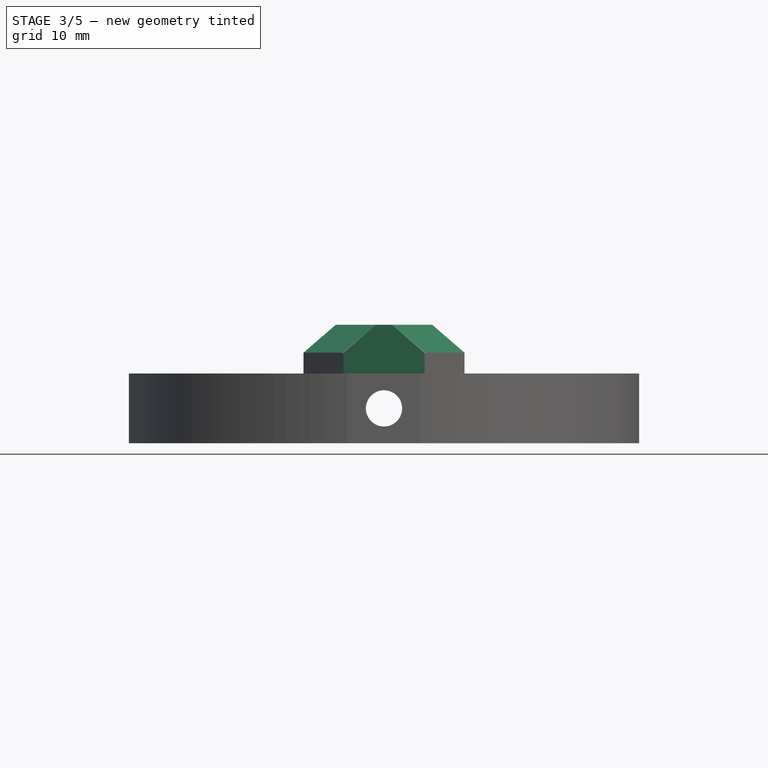
[diagram: stage 3 of 5 — front view after this stage's code; geometry added in this stage tinted green]
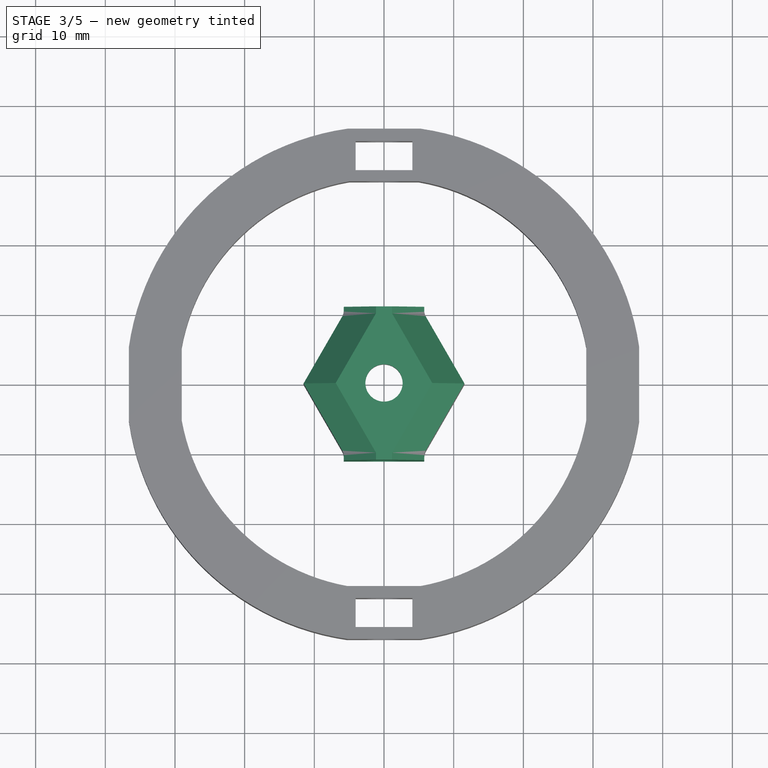
[diagram: stage 3 of 5 — top view after this stage's code; geometry added in this stage tinted green]
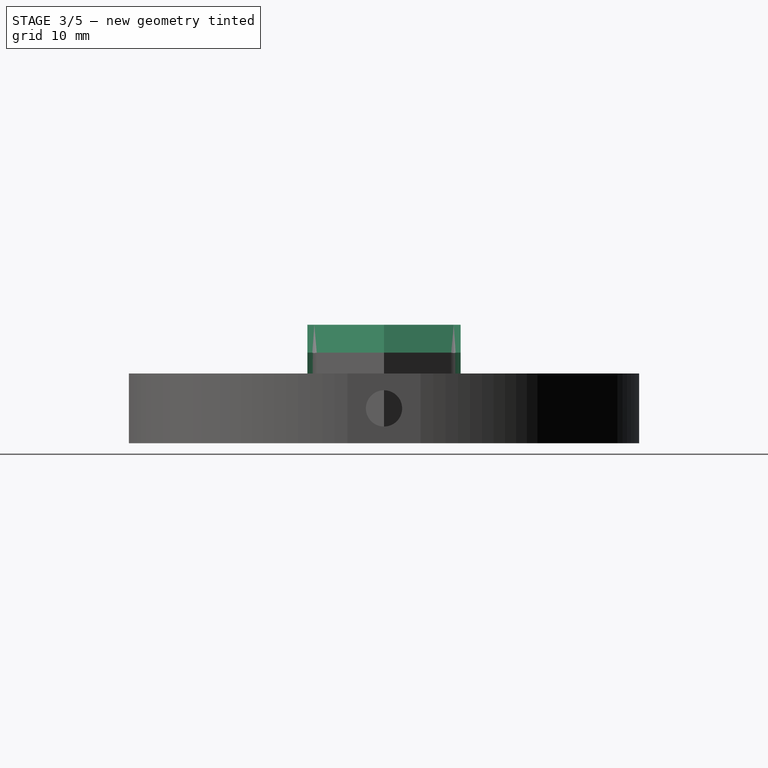
[diagram: stage 3 of 5 — right view after this stage's code; geometry added in this stage tinted green]
FEATURE [PartDesign::Pocket] Pocket013
  BaseFeature = -> Pad005
  Length = 0
  Length2 = 100
  Profile = -> Sketch016
  Refine = true
  Type = 3
  UpToFace = -> Pad005 [Face31]
FEATURE [PartDesign::Pocket] Pocket014
  BaseFeature = -> Pocket013
  Length = 3
  Length2 = 100
  Profile = -> Pocket013 [Face14]
  Refine = true
  Type = 0
FEATURE [PartDesign::Chamfer] Chamfer
  Angle = 45
  Base = -> Pocket014 [Edge58,Edge59,Edge56,Edge55]
  BaseFeature = -> Pocket014
  ChamferType = 0
  FlipDirection = false
  Refine = true
  Size = 4
  Size2 = 1
  SupportTransform = false
FEATURE [PartDesign::Pad] Pad006
  BaseFeature = -> Chamfer
  Direction = (1,1,1)
  Length = 1
  Length2 = 100
  Profile = -> Chamfer [Face2]
  Refine = true
  Type = 0
FEATURE [PartDesign::Pad] Pad007
  BaseFeature = -> Pad006
  Direction = (1,1,1)
  Length = 1
  Length2 = 100
  Profile = -> Pad006 [Face3]
  Refine = true
  Type = 0
FEATURE [PartDesign::Fillet] Fillet
  Base = -> Pad007 [Edge97,Edge87,Edge130,Edge122]
  BaseFeature = -> Pad007
  Radius = 2
  Refine = true
  SupportTransform = false
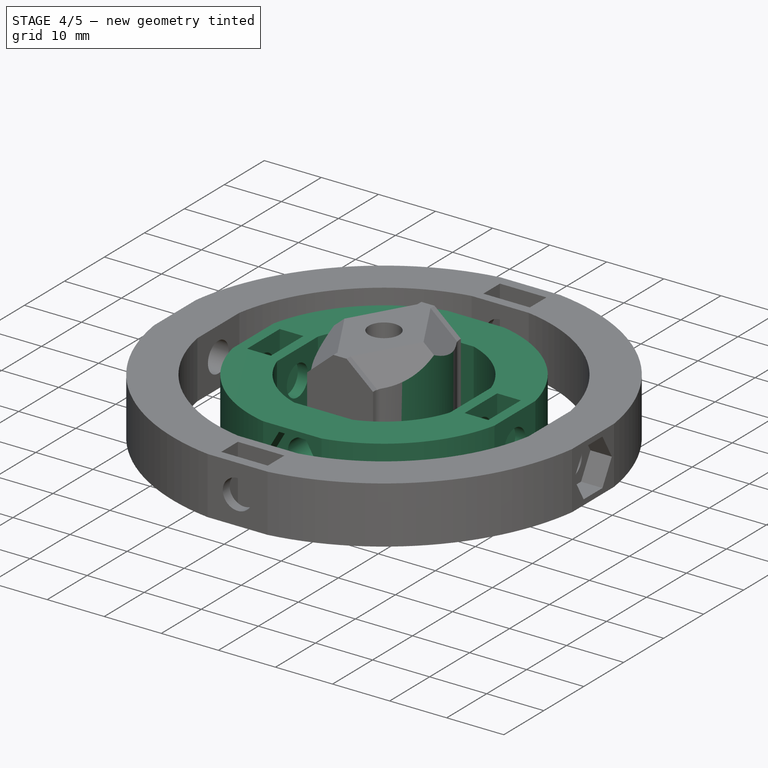
[diagram: stage 4 of 5 — iso view after this stage's code; geometry added in this stage tinted green]
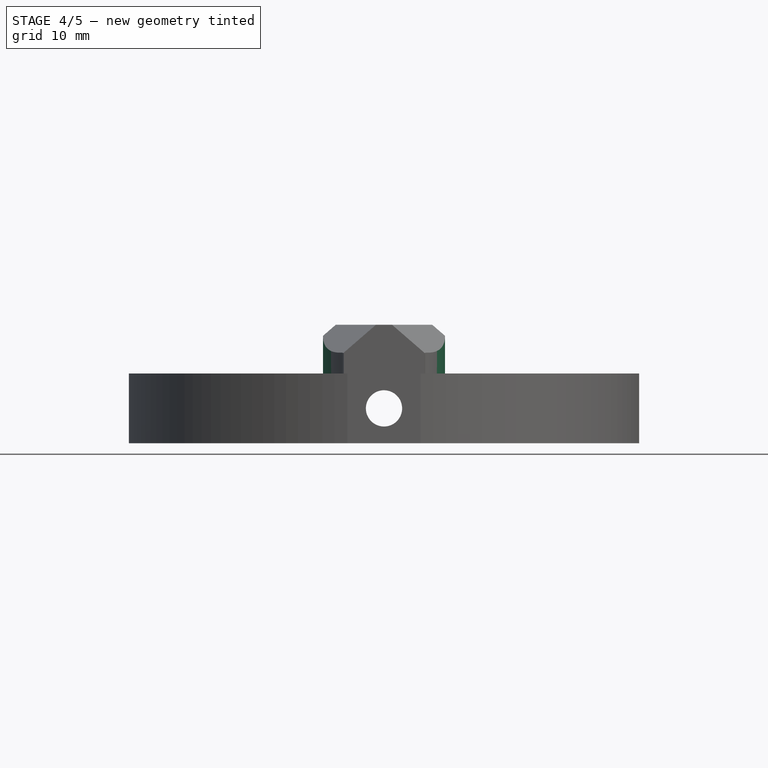
[diagram: stage 4 of 5 — front view after this stage's code; geometry added in this stage tinted green]
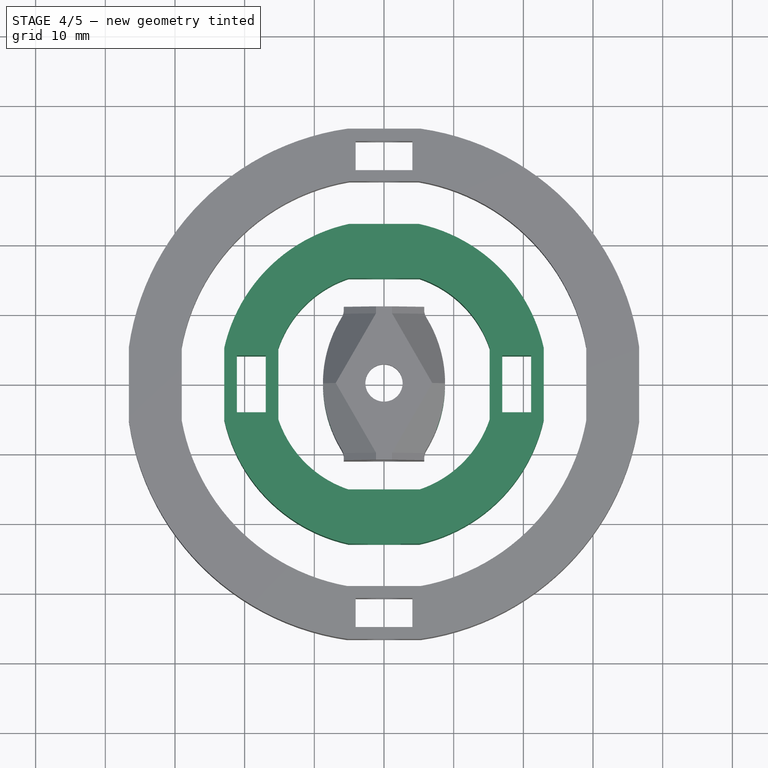
[diagram: stage 4 of 5 — top view after this stage's code; geometry added in this stage tinted green]
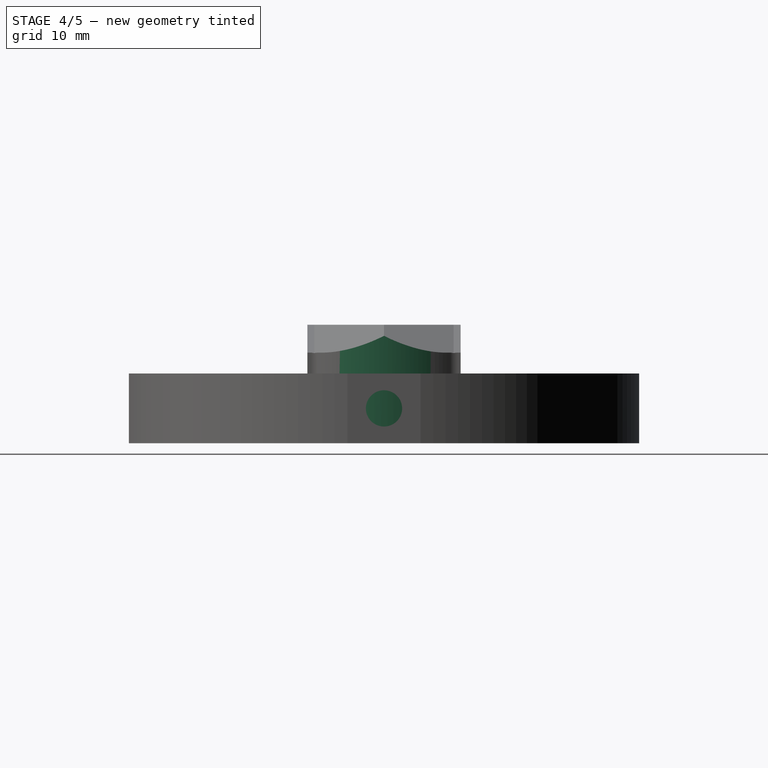
[diagram: stage 4 of 5 — right view after this stage's code; geometry added in this stage tinted green]
FEATURE [Sketcher::SketchObject] Sketch
  FullyConstrained = false
  MapMode = 5
  Support = -> [XY_Plane]
  expr: Constraints[3] = Spreadsheet.inner + Spreadsheet.wall * 2
  expr: Constraints[2] = Spreadsheet.inner
  sketch-geometry (18):
    g0: Circle CenterX=0 CenterY=0 CenterZ=0 NormalX=0 NormalY=0 NormalZ=1 AngleXU=0 Radius=16
    g1: Circle CenterX=0 CenterY=0 CenterZ=0 NormalX=0 NormalY=0 NormalZ=1 AngleXU=0 Radius=23.5
    g2: LineSegment StartX=-22.9359 StartY=-5.11815 StartZ=0 EndX=-22.9359 EndY=5.11815 EndZ=0
    g3: LineSegment StartX=-5 StartY=22.9619 StartZ=0 EndX=5 EndY=22.9619 EndZ=0
    g4: LineSegment StartX=-15.1593 StartY=5.11815 StartZ=0 EndX=-15.1593 EndY=-5.11815 EndZ=0
    g5: LineSegment StartX=15.1593 StartY=5.11815 StartZ=0 EndX=15.1593 EndY=-5.11815 EndZ=0
    g6: LineSegment StartX=22.9359 StartY=5.11815 StartZ=0 EndX=22.9359 EndY=-5.11815 EndZ=0
    g7: LineSegment StartX=-5.11815 StartY=15.1593 StartZ=0 EndX=5.11815 EndY=15.1593 EndZ=0
    g8: LineSegment StartX=-5.11815 StartY=-15.1593 StartZ=0 EndX=5.11815 EndY=-15.1593 EndZ=0
    g9: LineSegment StartX=-5.11815 StartY=-22.9359 StartZ=0 EndX=5.11815 EndY=-22.9359 EndZ=0
    g10: ArcOfCircle CenterX=0 CenterY=0 CenterZ=0 NormalX=0 NormalY=0 NormalZ=1 AngleXU=0 Radius=16 StartAngle=1.8964 EndAngle=2.81599
    g11: ArcOfCircle CenterX=0 CenterY=0 CenterZ=0 NormalX=0 NormalY=0 NormalZ=1 AngleXU=0 Radius=23.5 StartAngle=1.7852 EndAngle=2.92204
    g12: ArcOfCircle CenterX=0 CenterY=0 CenterZ=0 NormalX=0 NormalY=0 NormalZ=1 AngleXU=0 Radius=16 StartAngle=0.325607 EndAngle=1.24519
    g13: ArcOfCircle CenterX=0 CenterY=0 CenterZ=0 NormalX=0 NormalY=0 NormalZ=1 AngleXU=0 Radius=23.5 StartAngle=0.219553 EndAngle=1.35639
    g14: ArcOfCircle CenterX=0 CenterY=0 CenterZ=0 NormalX=0 NormalY=0 NormalZ=1 AngleXU=0 Radius=16 StartAngle=5.038 EndAngle=5.95758
    g15: ArcOfCircle CenterX=0 CenterY=0 CenterZ=0 NormalX=0 NormalY=0 NormalZ=1 AngleXU=0 Radius=16 StartAngle=3.4672 EndAngle=4.38678
    g16: ArcOfCircle CenterX=0 CenterY=0 CenterZ=0 NormalX=0 NormalY=0 NormalZ=1 AngleXU=0 Radius=23.5 StartAngle=4.93194 EndAngle=6.06363
    g17: ArcOfCircle CenterX=0 CenterY=0 CenterZ=0 NormalX=0 NormalY=0 NormalZ=1 AngleXU=0 Radius=23.5 StartAngle=3.36115 EndAngle=4.49284
  constraints (49):
    c: Coincident(g0,g-1)
    c: Coincident(g1,g0)
    c: Diameter(g0) = 32
    c: Diameter(g1) = 47
    c: PointOnObject(g2,g1)
    c: Symmetric(g2,g2,g-1)
    c: Symmetric(g3,g3,g-2)
    c: Distance(g3) = 10
    c: PointOnObject(g4,g0)
    c: PointOnObject(g4,g0)
    c: Vertical(g4)
    c: PointOnObject(g5,g0)
    c: Vertical(g5)
    c: PointOnObject(g6,g1)
    c: Vertical(g6)
    c: PointOnObject(g7,g0)
    c: Horizontal(g7)
    c: Horizontal(g9)
    c: Horizontal(g8)
    c: Equal(g7,g4)
    c: Equal(g4,g2)
    c: Equal(g2,g8)
    c: Equal(g8,g5)
    c: Equal(g5,g6)
    c: Equal(g6,g9)
    c: Coincident(g10,g-1)
    c: Coincident(g10,g4)
    c: Coincident(g10,g7)
    c: Coincident(g11,g10)
    c: Coincident(g11,g2)
    c: Coincident(g11,g3)
    c: Coincident(g12,g10)
    c: Coincident(g12,g7)
    c: Coincident(g12,g5)
    c: Coincident(g13,g10)
    c: Coincident(g13,g3)
    c: Coincident(g13,g6)
    c: Coincident(g14,g10)
    c: Coincident(g14,g5)
    c: Coincident(g14,g8)
    c: Coincident(g15,g10)
    c: Coincident(g15,g8)
    c: Coincident(g15,g4)
    c: Coincident(g16,g10)
    c: Coincident(g16,g6)
    c: Coincident(g16,g9)
    c: Coincident(g17,g10)
    c: Coincident(g17,g9)
    c: Coincident(g17,g2)
FEATURE [Spreadsheet::Sheet] Spreadsheet
  cells = A1=wall width; B1(wall)=7.5; A2=inner circle; B2(inner)=32; A3=outer circle; B3(outer)=60; A4=screw; B4(screw)=8; A5=clearence; B5(clearence)=0.15; A6=screw hole; B6(hole)=5.2; A7=nut height; B7(nut)=4; A8=ring height; B8(ringheight)=10; A9=grip base width; B9(gripwidth)=35; A10=grip height; B10(gripheight)=20
FEATURE [PartDesign::Pad] Pad
  Direction = (1,1,1)
  Length = 10
  Length2 = 100
  Profile = -> Sketch
  Refine = true
  Type = 0
  expr: Length = Spreadsheet.ringheight
FEATURE [Sketcher::SketchObject] Sketch001
  ExternalGeometry = -> [Pad,Sketch]
  FullyConstrained = true
  MapMode = 5
  Placement = pos=(0,-22.9359,0) rot=(1,0,0;1.5708rad)
  Support = -> [Pad]
  expr: Constraints[6] = Spreadsheet.hole + Spreadsheet.clearence
  sketch-geometry (3):
    g0: LineSegment StartX=-5.11815 StartY=10 StartZ=0 EndX=5.11815 EndY=0 EndZ=0
    g1: LineSegment StartX=5.11815 StartY=10 StartZ=0 EndX=-5.11815 EndY=0 EndZ=0
    g2: Circle CenterX=2.1e-15 CenterY=5 CenterZ=0 NormalX=0 NormalY=0 NormalZ=1 AngleXU=0 Radius=2.675
  constraints (7):
    c: Coincident(g0,g-3)
    c: Coincident(g0,g-4)
    c: Coincident(g1,g-3)
    c: Coincident(g1,g-4)
    c: PointOnObject(g2,g1)
    c: PointOnObject(g2,g0)
    c: Diameter(g2) = 5.35
FEATURE [PartDesign::Pocket] Pocket
  BaseFeature = -> Pad
  Length = 11.25
  Length2 = 100
  Profile = -> Sketch001
  Refine = true
  Type = 3
  UpToFace = -> Pad [Face12]
  expr: Length = Spreadsheet.wall * 1.5
FEATURE [Sketcher::SketchObject] Sketch010
  FullyConstrained = true
  MapMode = 5
  Placement = pos=(0,0,0) rot=(1,0,0;3.14159rad)
  Support = -> [Pad003]
  expr: Constraints[19] = Spreadsheet.screw + Spreadsheet.clearence
  sketch-geometry (7):
    g0: LineSegment StartX=4.7054 StartY=0 StartZ=0 EndX=2.3527 EndY=4.075 EndZ=0
    g1: LineSegment StartX=2.3527 StartY=4.075 StartZ=0 EndX=-2.3527 EndY=4.075 EndZ=0
    g2: LineSegment StartX=-2.3527 StartY=4.075 StartZ=0 EndX=-4.7054 EndY=-2.185e-13 EndZ=0
    g3: LineSegment StartX=-4.7054 StartY=-2.185e-13 StartZ=0 EndX=-2.3527 EndY=-4.075 EndZ=0
    g4: LineSegment StartX=-2.3527 StartY=-4.075 StartZ=0 EndX=2.3527 EndY=-4.075 EndZ=0
    g5: LineSegment StartX=2.3527 StartY=-4.075 StartZ=0 EndX=4.7054 EndY=0 EndZ=0
    g6: Circle CenterX=0 CenterY=0 CenterZ=0 NormalX=0 NormalY=0 NormalZ=1 AngleXU=0 Radius=4.7054
  constraints (16):
    c: Coincident(g0,g1)
    c: Coincident(g1,g2)
    c: Coincident(g2,g3)
    c: Coincident(g3,g4)
    c: Coincident(g4,g5)
    c: Coincident(g5,g0)
    c: Equal(g0, g1-g5) x5
    c: PointOnObject(g0,g6)
    c: PointOnObject(g1,g6)
    c: PointOnObject(g2,g6)
    c: PointOnObject(g3,g6)
    c: PointOnObject(g4,g6)
    c: PointOnObject(g5,g6)
    c: Coincident(g6,g-1)
    c: PointOnObject(g5,g-1)
    c: Distance(g0,g4) = 8.15
FEATURE [PartDesign::Pocket] Pocket001
  BaseFeature = -> Pocket
  Length = 3.75
  Length2 = 100
  Profile = -> Sketch002
  Refine = true
  Type = 0
  expr: Length = Spreadsheet.wall / 2
FEATURE [Sketcher::SketchObject] Sketch003
  ExternalGeometry = -> [Pocket001]
  FullyConstrained = true
  MapMode = 5
  Placement = pos=(0,0,0) rot=(1,0,0;3.14159rad)
  expr: Constraints[25] = Spreadsheet.nut + Spreadsheet.clearence
  expr: Constraints[23] = Spreadsheet.screw + Spreadsheet.clearence
  sketch-geometry (15):
    g0: GeomPoint X=-22.9359 Y=-5.11815 Z=0
    g1: LineSegment StartX=-22.9359 StartY=-5.11815 StartZ=0 EndX=-15.1593 EndY=5.11815 EndZ=0
    g2: LineSegment StartX=-15.1593 StartY=-5.11815 StartZ=0 EndX=-22.9359 EndY=5.11815 EndZ=0
    g3: LineSegment StartX=15.1593 StartY=-5.11815 StartZ=0 EndX=22.9359 EndY=5.11815 EndZ=0
    g4: LineSegment StartX=15.1593 StartY=5.11815 StartZ=0 EndX=22.9359 EndY=-5.11815 EndZ=0
    g5: GeomPoint X=-19.0476 Y=1e-15 Z=0
    g6: GeomPoint X=19.0476 Y=-3.4e-15 Z=0
    g7: LineSegment StartX=-21.1226 StartY=4.075 StartZ=0 EndX=-16.9726 EndY=4.075 EndZ=0
    g8: LineSegment StartX=-16.9726 StartY=4.075 StartZ=0 EndX=-16.9726 EndY=-4.075 EndZ=0
    g9: LineSegment StartX=-16.9726 StartY=-4.075 StartZ=0 EndX=-21.1226 EndY=-4.075 EndZ=0
    g10: LineSegment StartX=-21.1226 StartY=-4.075 StartZ=0 EndX=-21.1226 EndY=4.075 EndZ=0
    g11: LineSegment StartX=16.9726 StartY=4.075 StartZ=0 EndX=21.1226 EndY=4.075 EndZ=0
    g12: LineSegment StartX=21.1226 StartY=4.075 StartZ=0 EndX=21.1226 EndY=-4.075 EndZ=0
    g13: LineSegment StartX=21.1226 StartY=-4.075 StartZ=0 EndX=16.9726 EndY=-4.075 EndZ=0
    g14: LineSegment StartX=16.9726 StartY=-4.075 StartZ=0 EndX=16.9726 EndY=4.075 EndZ=0
  constraints (35):
    c: Coincident(g1,g0)
    c: PointOnObject(g5,g2)
    c: PointOnObject(g6,g3)
    c: PointOnObject(g6,g4)
    c: PointOnObject(g5,g1)
    c: Coincident(g7,g8)
    c: Coincident(g8,g9)
    c: Coincident(g9,g10)
    c: Coincident(g10,g7)
    c: Horizontal(g7)
    c: Horizontal(g9)
    c: Vertical(g8)
    c: Vertical(g10)
    c: Symmetric(g8,g7,g5)
    c: Coincident(g11,g12)
    c: Coincident(g12,g13)
    c: Coincident(g13,g14)
    c: Coincident(g14,g11)
    c: Horizontal(g11)
    c: Horizontal(g13)
    c: Vertical(g12)
    c: Vertical(g14)
    c: Symmetric(g12,g11,g6)
    c: Distance(g8) = 8.15
    c: Equal(g8,g12)
    c: Distance(g7) = 4.15
    c: Equal(g7,g11)
    c: Coincident(g2,g-6)
    c: Coincident(g0,g-6)
    c: Coincident(g1,g-5)
    c: Coincident(g2,g-5)
    c: Coincident(g4,g-3)
    c: Coincident(g3,g-3)
    c: Coincident(g3,g-4)
    c: Coincident(g4,g-4)
FEATURE [PartDesign::Pocket] Pocket002
  BaseFeature = -> Pocket001
  Length = 10
  Length2 = 100
  Profile = -> Sketch003
  Refine = true
  Type = 0
  expr: Length = Spreadsheet.ringheight
FEATURE [PartDesign::PolarPattern] PolarPattern
  Angle = 360
  Axis = -> Z_Axis
  BaseFeature = -> Pocket002
  Occurrences = 2
  Originals = -> [Pocket001]
  Refine = true
FEATURE [PartDesign::PolarPattern] PolarPattern003
  Angle = 360
  Axis = -> Z_Axis
  BaseFeature = -> PolarPattern
  Occurrences = 4
  Originals = -> [Pocket]
  Refine = true
FEATURE [PartDesign::Fillet] Fillet001
  Base = -> Fillet [Edge82,Edge7]
  BaseFeature = -> Fillet
  Radius = 18
  Refine = true
  SupportTransform = false
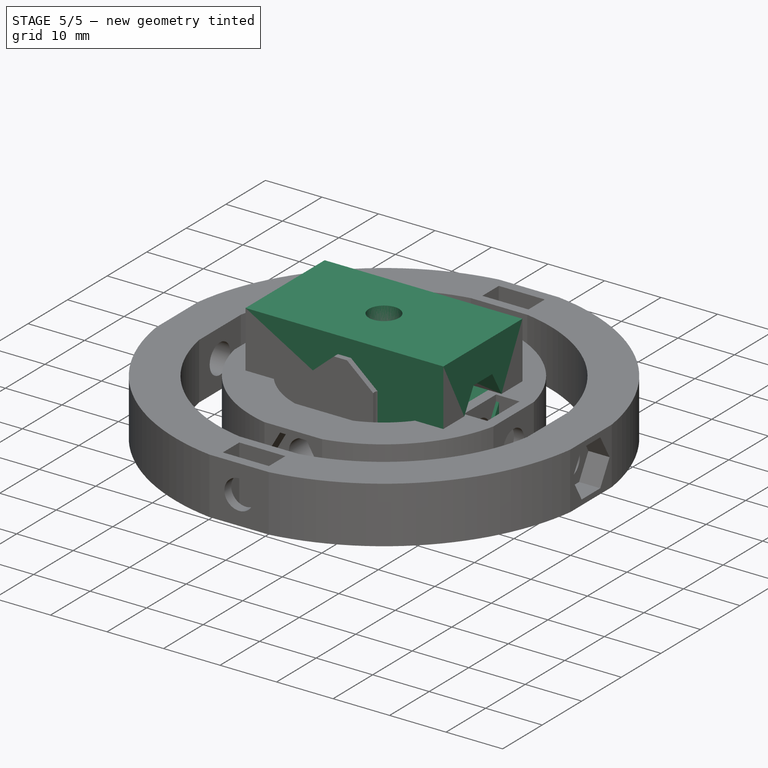
[diagram: stage 5 of 5 — iso view after this stage's code; geometry added in this stage tinted green]
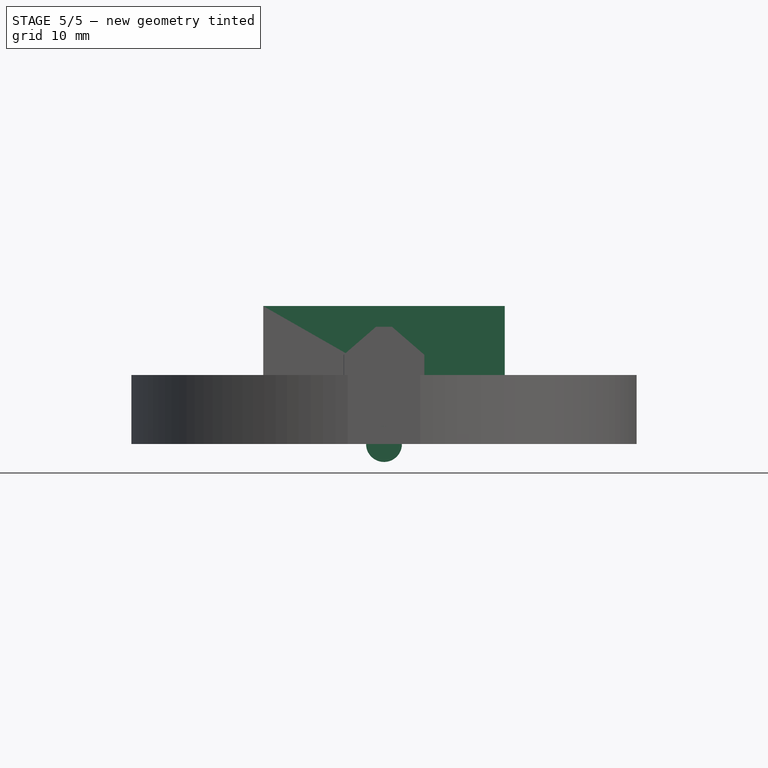
[diagram: stage 5 of 5 — front view after this stage's code; geometry added in this stage tinted green]
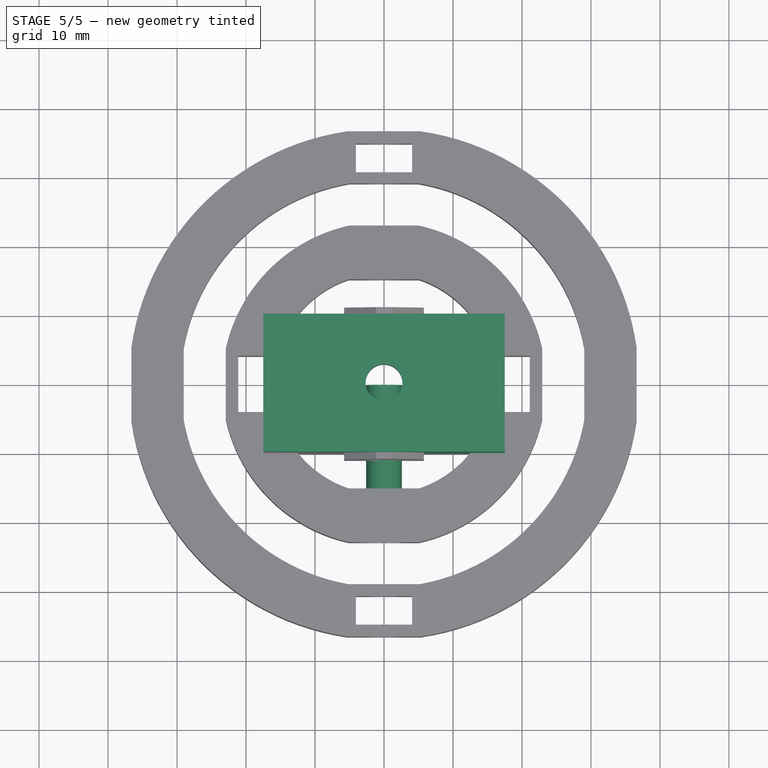
[diagram: stage 5 of 5 — top view after this stage's code; geometry added in this stage tinted green]
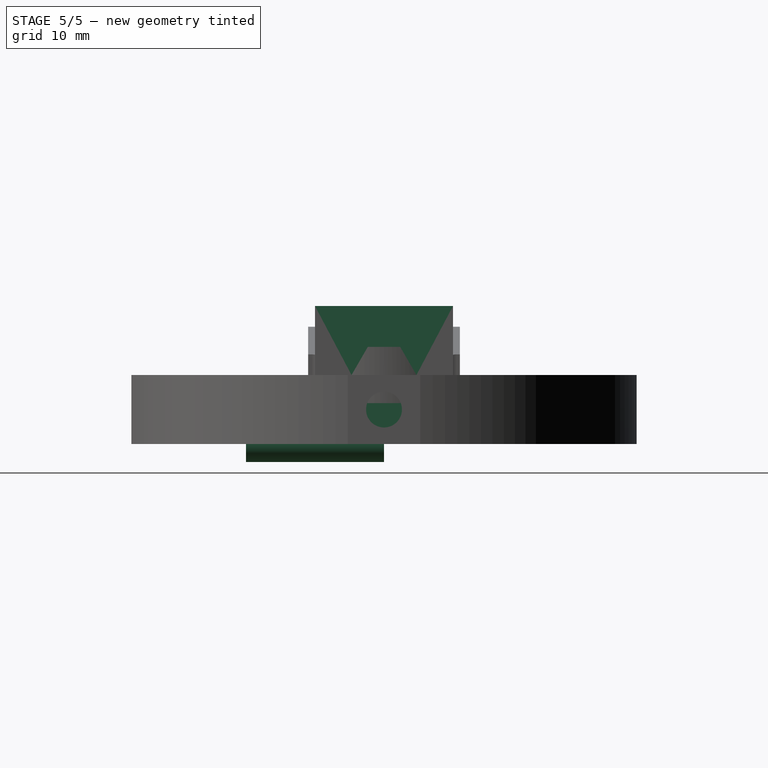
[diagram: stage 5 of 5 — right view after this stage's code; geometry added in this stage tinted green]
FEATURE [Sketcher::SketchObject] Sketch002
  FullyConstrained = false
  MapMode = 5
  Placement = pos=(0,-23.9586,0) rot=(1,0,0;1.5708rad)
  expr: Constraints[17] = Spreadsheet.screw + Spreadsheet.clearence
  sketch-geometry (7):
    g0: LineSegment StartX=2.38083 StartY=9.07628 StartZ=0 EndX=-2.32457 EndY=9.07628 EndZ=0
    g1: LineSegment StartX=-2.32457 StartY=9.07628 StartZ=0 EndX=-4.67727 EndY=5.00128 EndZ=0
    g2: LineSegment StartX=-4.67727 StartY=5.00128 StartZ=0 EndX=-2.32457 EndY=0.926277 EndZ=0
    g3: LineSegment StartX=-2.32457 StartY=0.926277 StartZ=0 EndX=2.38083 EndY=0.926277 EndZ=0
    g4: LineSegment StartX=2.38083 StartY=0.926277 StartZ=0 EndX=4.73353 EndY=5.00128 EndZ=0
    g5: LineSegment StartX=4.73353 StartY=5.00128 StartZ=0 EndX=2.38083 EndY=9.07628 EndZ=0
    g6: Circle CenterX=0.0281301 CenterY=5.00128 CenterZ=0 NormalX=0 NormalY=0 NormalZ=1 AngleXU=0 Radius=4.7054
  constraints (15):
    c: Coincident(g0,g1)
    c: Coincident(g1,g2)
    c: Coincident(g2,g3)
    c: Coincident(g3,g4)
    c: Coincident(g4,g5)
    c: Coincident(g5,g0)
    c: Equal(g0, g1-g5) x5
    c: PointOnObject(g0,g6)
    c: PointOnObject(g1,g6)
    c: PointOnObject(g2,g6)
    c: PointOnObject(g3,g6)
    c: PointOnObject(g4,g6)
    c: PointOnObject(g5,g6)
    c: DistanceY(g3,g0) = 8.15
    c: Horizontal(g0)
FEATURE [Sketcher::SketchObject] Sketch004
  FullyConstrained = true
  MapMode = 5
  Support = -> [XY_Plane001]
  expr: Constraints[10] = Spreadsheet.gripheight
  expr: Constraints[9] = Spreadsheet.gripwidth
  sketch-geometry (4):
    g0: LineSegment StartX=-17.5 StartY=10 StartZ=0 EndX=17.5 EndY=10 EndZ=0
    g1: LineSegment StartX=17.5 StartY=10 StartZ=0 EndX=17.5 EndY=-10 EndZ=0
    g2: LineSegment StartX=17.5 StartY=-10 StartZ=0 EndX=-17.5 EndY=-10 EndZ=0
    g3: LineSegment StartX=-17.5 StartY=-10 StartZ=0 EndX=-17.5 EndY=10 EndZ=0
  constraints (11):
    c: Coincident(g0,g1)
    c: Coincident(g1,g2)
    c: Coincident(g2,g3)
    c: Coincident(g3,g0)
    c: Horizontal(g0)
    c: Horizontal(g2)
    c: Vertical(g1)
    c: Vertical(g3)
    c: Symmetric(g1,g0,g-1)
    c: Distance(g0) = 35
    c: Distance(g1) = 20
FEATURE [PartDesign::Pad] Pad001
  Direction = (1,1,1)
  Length = 20
  Length2 = 100
  Profile = -> Sketch004
  Refine = true
  Type = 0
  expr: Length = Spreadsheet.gripheight
FEATURE [Sketcher::SketchObject] Sketch005
  ExternalGeometry = -> [Pad001]
  FullyConstrained = true
  MapMode = 5
  Placement = pos=(17.5,0,0) rot=(0.57735,0.57735,0.57735;2.0944rad)
  Support = -> [Pad001]
  expr: Constraints[24] = Spreadsheet.screw + Spreadsheet.clearence
  sketch-geometry (9):
    g0: LineSegment StartX=-10 StartY=20 StartZ=0 EndX=10 EndY=0 EndZ=0
    g1: LineSegment StartX=10 StartY=20 StartZ=0 EndX=-10 EndY=0 EndZ=0
    g2: LineSegment StartX=2.3527 StartY=14.075 StartZ=0 EndX=-2.3527 EndY=14.075 EndZ=0
    g3: LineSegment StartX=-2.3527 StartY=14.075 StartZ=0 EndX=-4.7054 EndY=10 EndZ=0
    g4: LineSegment StartX=-4.7054 StartY=10 StartZ=0 EndX=-2.3527 EndY=5.925 EndZ=0
    g5: LineSegment StartX=-2.3527 StartY=5.925 StartZ=0 EndX=2.3527 EndY=5.925 EndZ=0
    g6: LineSegment StartX=2.3527 StartY=5.925 StartZ=0 EndX=4.7054 EndY=10 EndZ=0
    g7: LineSegment StartX=4.7054 StartY=10 StartZ=0 EndX=2.3527 EndY=14.075 EndZ=0
    g8: Circle CenterX=-3e-16 CenterY=10 CenterZ=0 NormalX=0 NormalY=0 NormalZ=1 AngleXU=0 Radius=4.7054
  constraints (21):
    c: Coincident(g0,g-3)
    c: Coincident(g0,g-4)
    c: Coincident(g1,g-3)
    c: Coincident(g1,g-4)
    c: Coincident(g2,g3)
    c: Coincident(g3,g4)
    c: Coincident(g4,g5)
    c: Coincident(g5,g6)
    c: Coincident(g6,g7)
    c: Coincident(g7,g2)
    c: Equal(g2, g3-g7) x5
    c: PointOnObject(g2,g8)
    c: PointOnObject(g3,g8)
    c: PointOnObject(g4,g8)
    c: PointOnObject(g5,g8)
    c: PointOnObject(g6,g8)
    c: PointOnObject(g7,g8)
    c: PointOnObject(g8,g1)
    c: Horizontal(g2)
    c: PointOnObject(g8,g0)
    c: Distance(g2,g5) = 8.15
FEATURE [PartDesign::Pocket] Pocket003
  BaseFeature = -> Pad001
  Length = 100
  Length2 = 100
  Profile = -> Sketch005
  Refine = true
  Type = 0
FEATURE [Sketcher::SketchObject] Sketch006
  FullyConstrained = true
  MapMode = 5
  Placement = pos=(0,0,0) rot=(1,0,0;1.5708rad)
  Support = -> [XZ_Plane002]
  expr: Constraints[1] = Spreadsheet.hole
  sketch-geometry (1):
    g0: Circle CenterX=0 CenterY=0 CenterZ=0 NormalX=0 NormalY=0 NormalZ=1 AngleXU=0 Radius=2.6
  constraints (2):
    c: Coincident(g0,g-1)
    c: Diameter(g0) = 5.2
FEATURE [PartDesign::Pad] Pad002
  Direction = (1,1,1)
  Length = 20
  Length2 = 100
  Placement = pos=(0,0,0) rot=(1,0,0;1.5708rad)
  Profile = -> Sketch006
  Refine = true
  Type = 0
FEATURE [PartDesign::Body] Body002
  Group = -> [Sketch006,Pad002]
  Origin = -> Origin002
  Placement = pos=(0,-4,5) rot=(0,0,1;0rad)
  Tip = -> Pad002
FEATURE [Sketcher::SketchObject] Sketch007
  ExternalGeometry = -> [Pocket003]
  FullyConstrained = true
  MapMode = 5
  Placement = pos=(0,0,20) rot=(0,0,1;0rad)
  Support = -> [Pocket003]
  expr: Constraints[6] = Spreadsheet.hole + Spreadsheet.clearence
  sketch-geometry (3):
    g0: LineSegment StartX=-17.5 StartY=10 StartZ=0 EndX=17.5 EndY=-10 EndZ=0
    g1: LineSegment StartX=17.5 StartY=10 StartZ=0 EndX=-17.5 EndY=-10 EndZ=0
    g2: Circle CenterX=1e-16 CenterY=0 CenterZ=0 NormalX=0 NormalY=0 NormalZ=1 AngleXU=0 Radius=2.675
  constraints (7):
    c: Coincident(g0,g-3)
    c: Coincident(g0,g-4)
    c: Coincident(g1,g-4)
    c: Coincident(g1,g-3)
    c: PointOnObject(g2,g1)
    c: PointOnObject(g2,g0)
    c: Diameter(g2) = 5.35
FEATURE [PartDesign::Pocket] Pocket004
  BaseFeature = -> Pocket003
  Length = 100
  Length2 = 100
  Profile = -> Sketch007
  Refine = true
  Type = 0
FEATURE [Sketcher::SketchObject] Sketch008
  FullyConstrained = true
  MapMode = 5
  Placement = pos=(0,0,0) rot=(1,0,0;3.14159rad)
  Support = -> [Pocket004]
  expr: Constraints[19] = Spreadsheet.screw + Spreadsheet.clearence
  sketch-geometry (7):
    g0: LineSegment StartX=4.7054 StartY=-1.5561e-12 StartZ=0 EndX=2.3527 EndY=4.075 EndZ=0
    g1: LineSegment StartX=2.3527 StartY=4.075 StartZ=0 EndX=-2.3527 EndY=4.075 EndZ=0
    g2: LineSegment StartX=-2.3527 StartY=4.075 StartZ=0 EndX=-4.7054 EndY=1.3269e-12 EndZ=0
    g3: LineSegment StartX=-4.7054 StartY=1.3269e-12 StartZ=0 EndX=-2.3527 EndY=-4.075 EndZ=0
    g4: LineSegment StartX=-2.3527 StartY=-4.075 StartZ=0 EndX=2.3527 EndY=-4.075 EndZ=0
    g5: LineSegment StartX=2.3527 StartY=-4.075 StartZ=0 EndX=4.7054 EndY=-1.5561e-12 EndZ=0
    g6: Circle CenterX=0 CenterY=0 CenterZ=0 NormalX=0 NormalY=0 NormalZ=1 AngleXU=0 Radius=4.7054
  constraints (16):
    c: Coincident(g0,g1)
    c: Coincident(g1,g2)
    c: Coincident(g2,g3)
    c: Coincident(g3,g4)
    c: Coincident(g4,g5)
    c: Coincident(g5,g0)
    c: Equal(g0, g1-g5) x5
    c: PointOnObject(g0,g6)
    c: PointOnObject(g1,g6)
    c: PointOnObject(g2,g6)
    c: PointOnObject(g3,g6)
    c: PointOnObject(g4,g6)
    c: PointOnObject(g5,g6)
    c: Coincident(g6,g-1)
    c: Horizontal(g1)
    c: Distance(g0,g4) = 8.15
FEATURE [PartDesign::Pocket] Pocket005
  BaseFeature = -> Pocket004
  Length = 10
  Length2 = 100
  Profile = -> Sketch008
  Refine = true
  Type = 0
  expr: Length = Spreadsheet.gripheight / 2
FEATURE [Sketcher::SketchObject] Sketch014
  ExternalGeometry = -> [PolarPattern003]
  FullyConstrained = true
  MapMode = 5
  Placement = pos=(0,22.9619,0) rot=(0,0.707107,0.707107;3.14159rad)
  Support = -> [PolarPattern003]
  expr: Constraints[22] = Spreadsheet.screw + Spreadsheet.clearence
  sketch-geometry (8):
    g0: LineSegment StartX=-5 StartY=10 StartZ=0 EndX=5 EndY=0 EndZ=0
    g1: LineSegment StartX=4.7054 StartY=5 StartZ=0 EndX=2.3527 EndY=9.075 EndZ=0
    g2: LineSegment StartX=2.3527 StartY=9.075 StartZ=0 EndX=-2.3527 EndY=9.075 EndZ=0
    g3: LineSegment StartX=-2.3527 StartY=9.075 StartZ=0 EndX=-4.7054 EndY=5 EndZ=0
    g4: LineSegment StartX=-4.7054 StartY=5 StartZ=0 EndX=-2.3527 EndY=0.925 EndZ=0
    g5: LineSegment StartX=-2.3527 StartY=0.925 StartZ=0 EndX=2.3527 EndY=0.925 EndZ=0
    g6: LineSegment StartX=2.3527 StartY=0.925 StartZ=0 EndX=4.7054 EndY=5 EndZ=0
    g7: Circle CenterX=0 CenterY=5 CenterZ=0 NormalX=0 NormalY=0 NormalZ=1 AngleXU=0 Radius=4.7054
  constraints (19):
    c: Coincident(g0,g-3)
    c: Coincident(g0,g-4)
    c: Coincident(g1,g2)
    c: Coincident(g2,g3)
    c: Coincident(g3,g4)
    c: Coincident(g4,g5)
    c: Coincident(g5,g6)
    c: Coincident(g6,g1)
    c: Equal(g1, g2-g6) x5
    c: PointOnObject(g1,g7)
    c: PointOnObject(g2,g7)
    c: PointOnObject(g3,g7)
    c: PointOnObject(g4,g7)
    c: PointOnObject(g5,g7)
    c: PointOnObject(g6,g7)
    c: PointOnObject(g7,g0)
    c: Horizontal(g2)
    c: PointOnObject(g7,g-2)
    c: Distance(g1,g5) = 8.15
FEATURE [PartDesign::Pocket] Pocket011
  BaseFeature = -> PolarPattern003
  Length = 3.75
  Length2 = 100
  Profile = -> Sketch014
  Refine = true
  Type = 0
  expr: Length = Spreadsheet.wall / 2
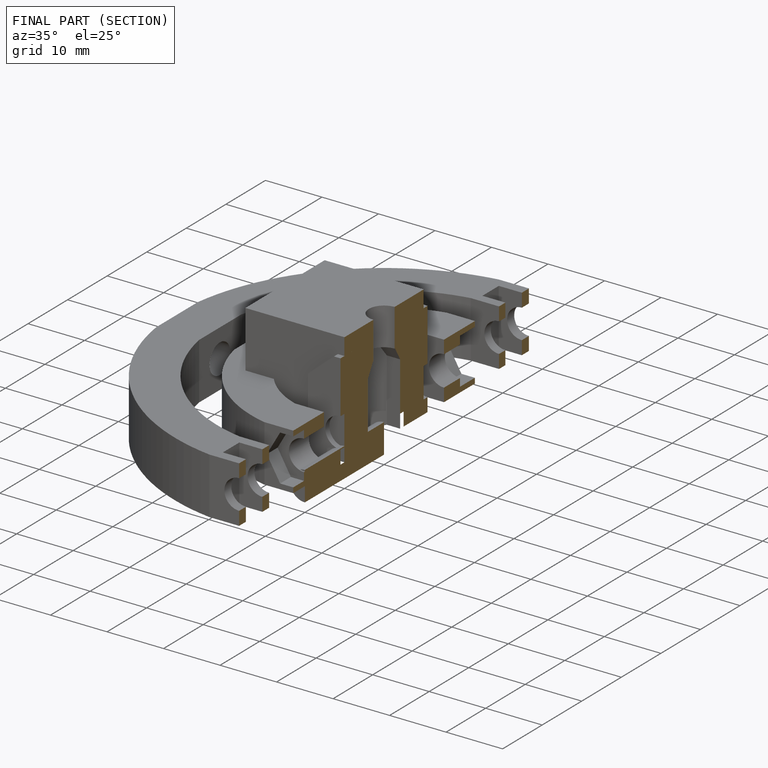
[diagram: finished part — half-section view (interior)]
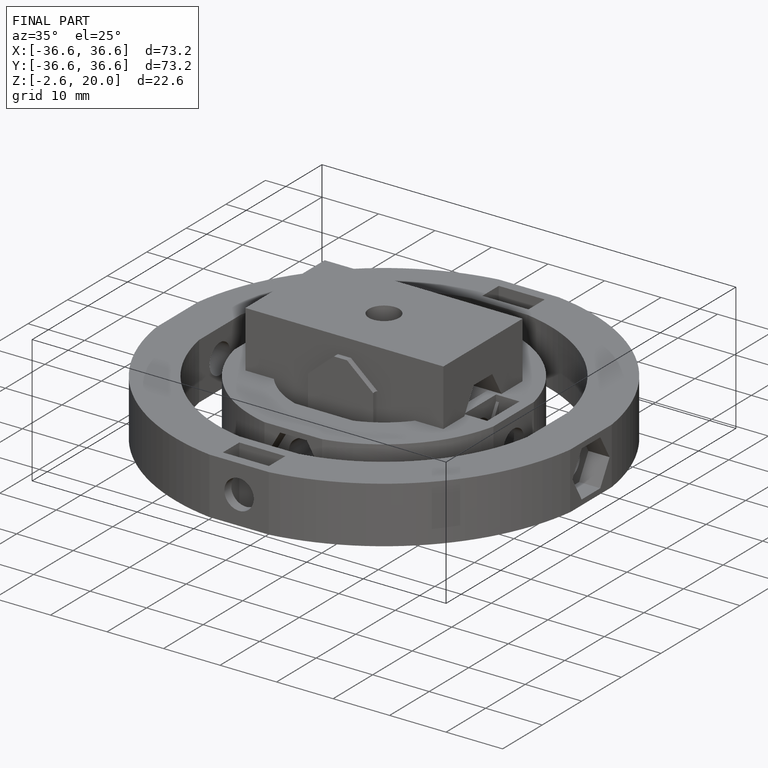
[diagram: finished part — iso view with bounding-box wireframe]
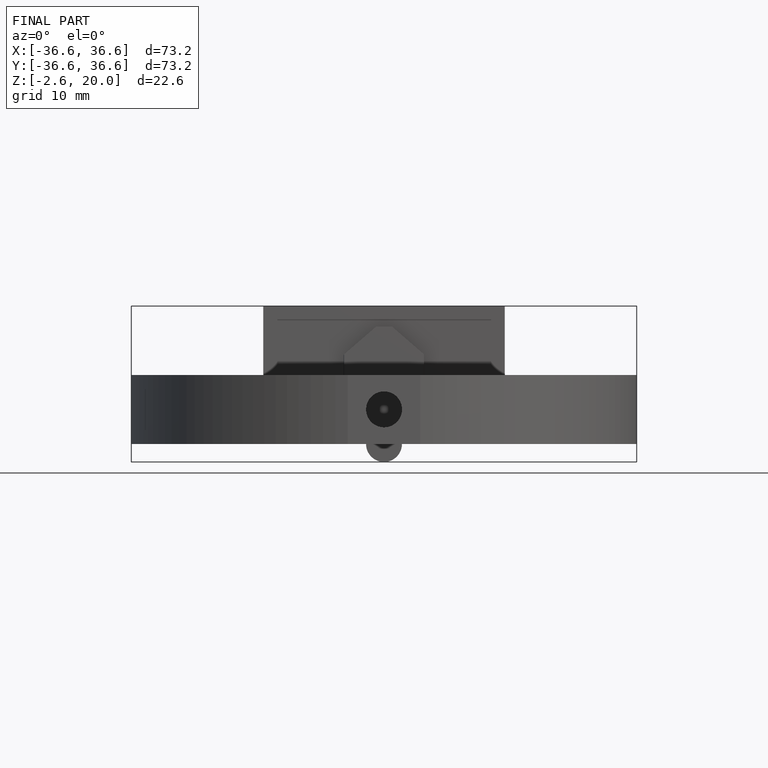
[diagram: finished part — front view with bounding-box wireframe]
